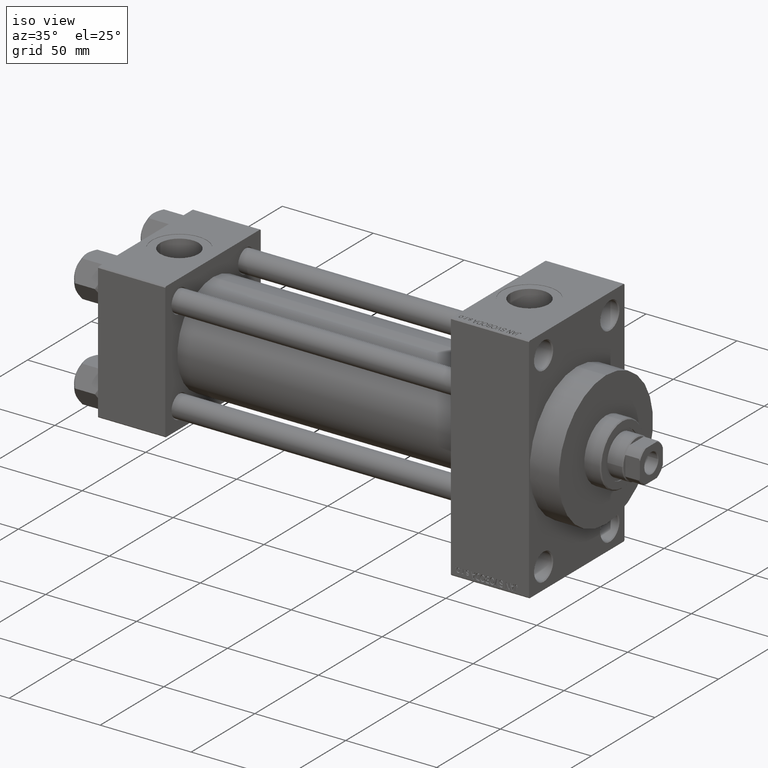
[diagram: clean part render]
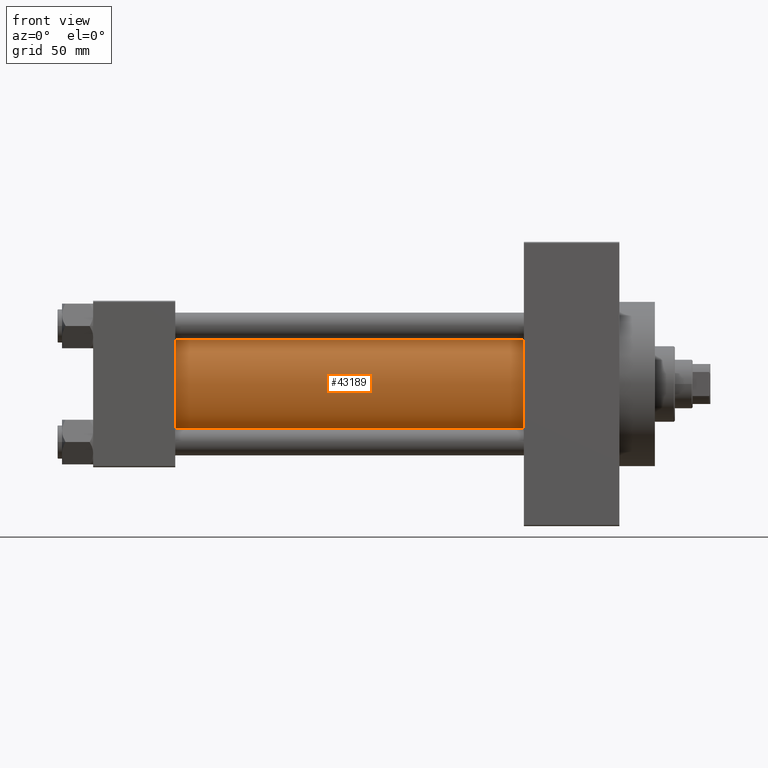
[diagram: tour spotlight — one face highlighted and labeled with its STEP entity id]
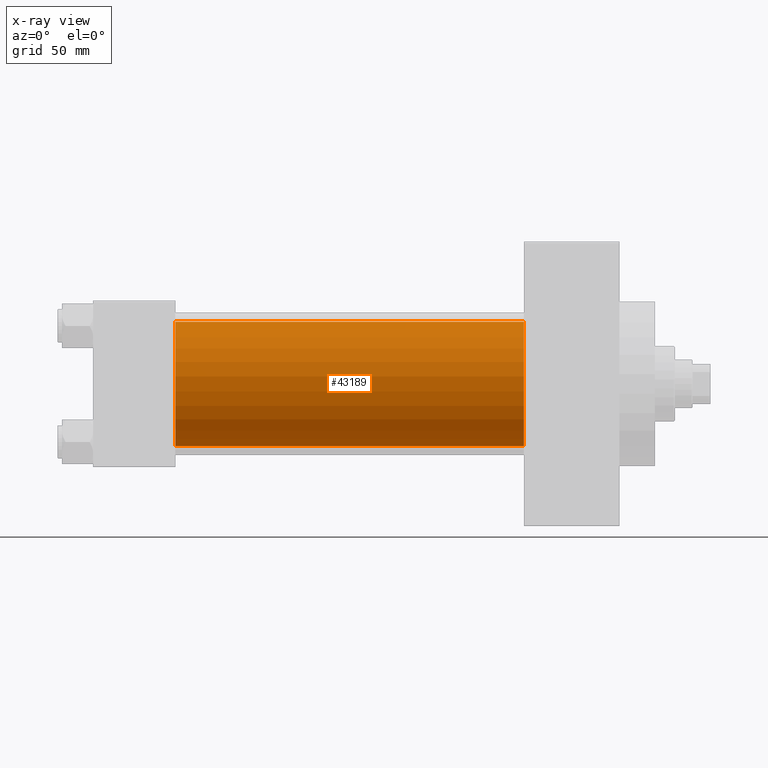
[diagram: x-ray of the same camera — body ghosted, this tour face saturated]
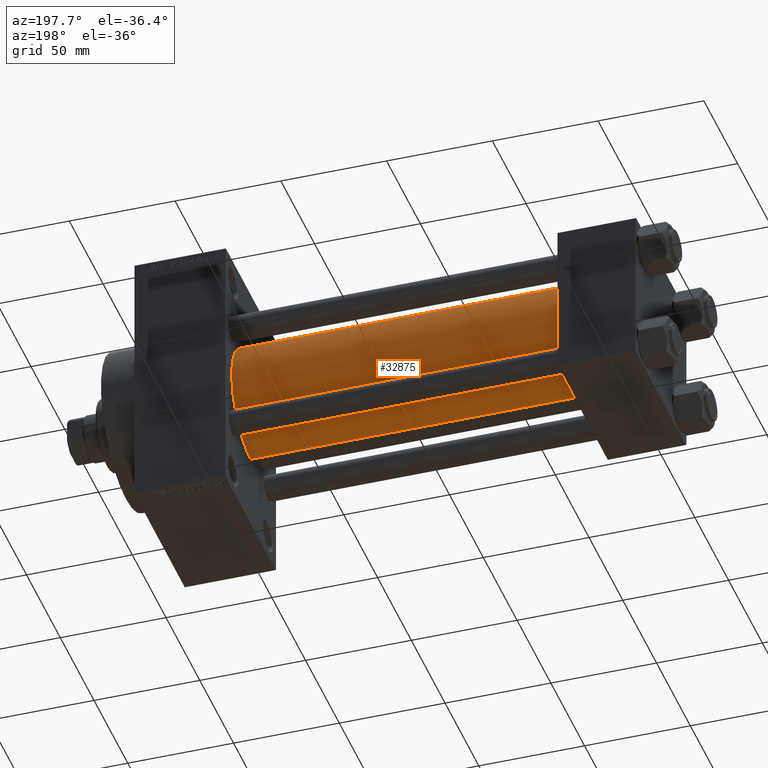
[diagram: tour spotlight — one face highlighted and labeled with its STEP entity id]
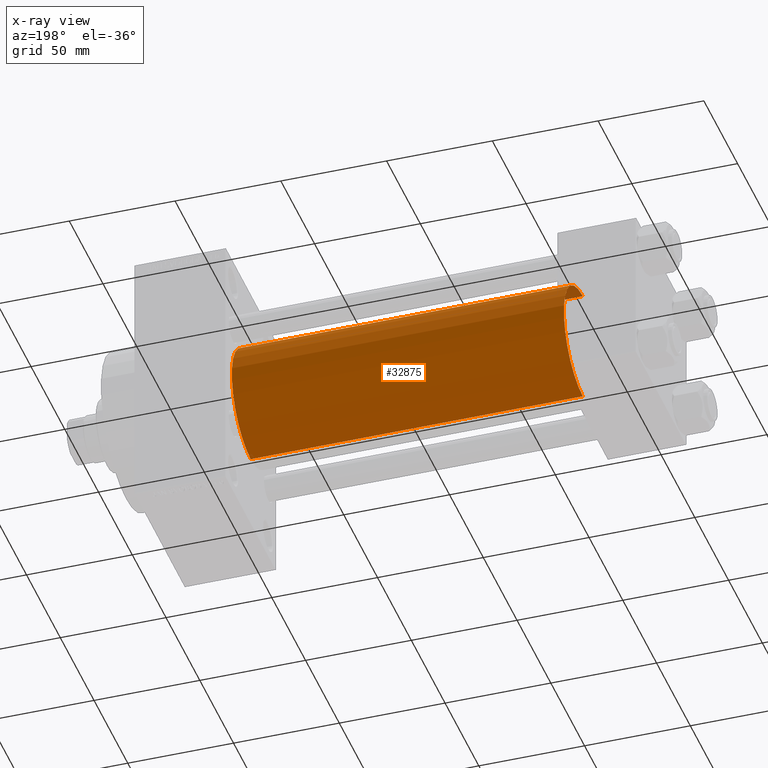
[diagram: x-ray of the same camera — body ghosted, this tour face saturated]
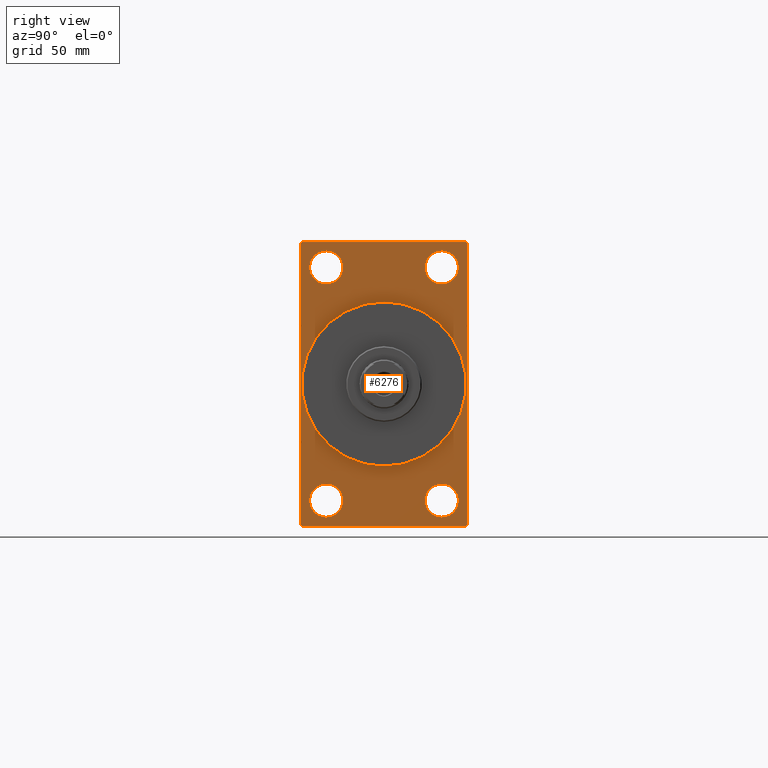
[diagram: tour spotlight — one face highlighted and labeled with its STEP entity id]
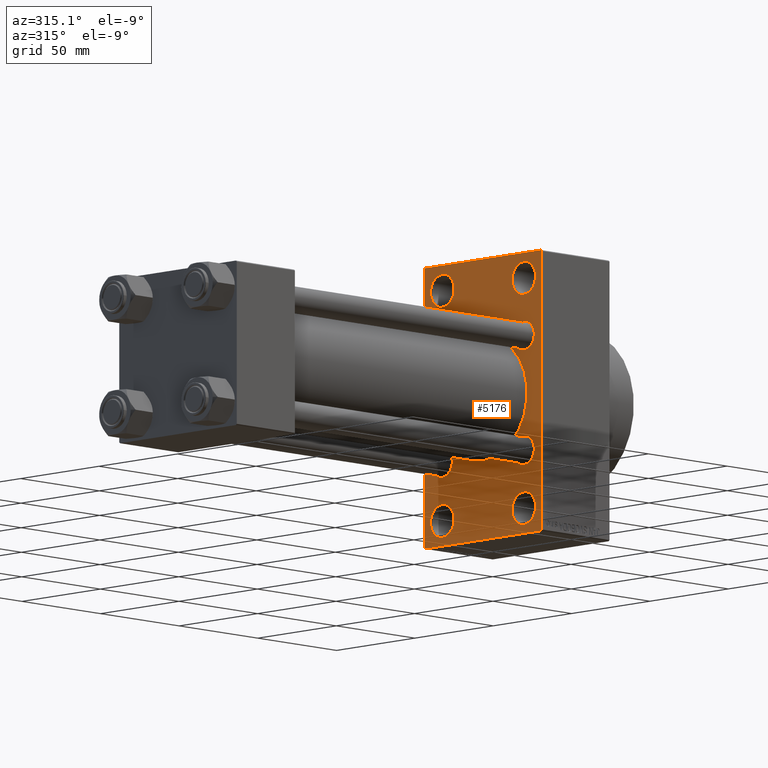
[diagram: tour spotlight — one face highlighted and labeled with its STEP entity id]
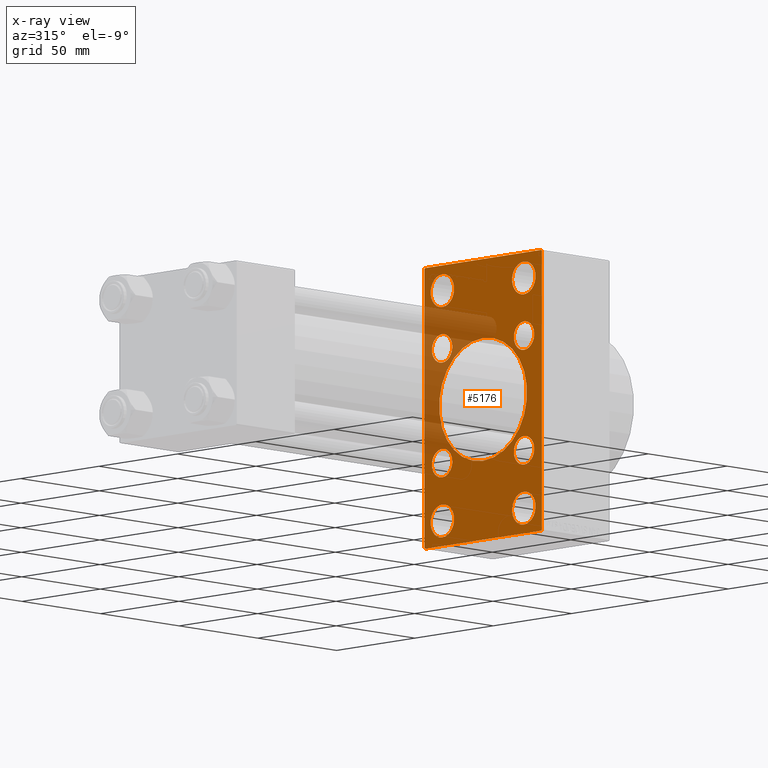
[diagram: x-ray of the same camera — body ghosted, this tour face saturated]
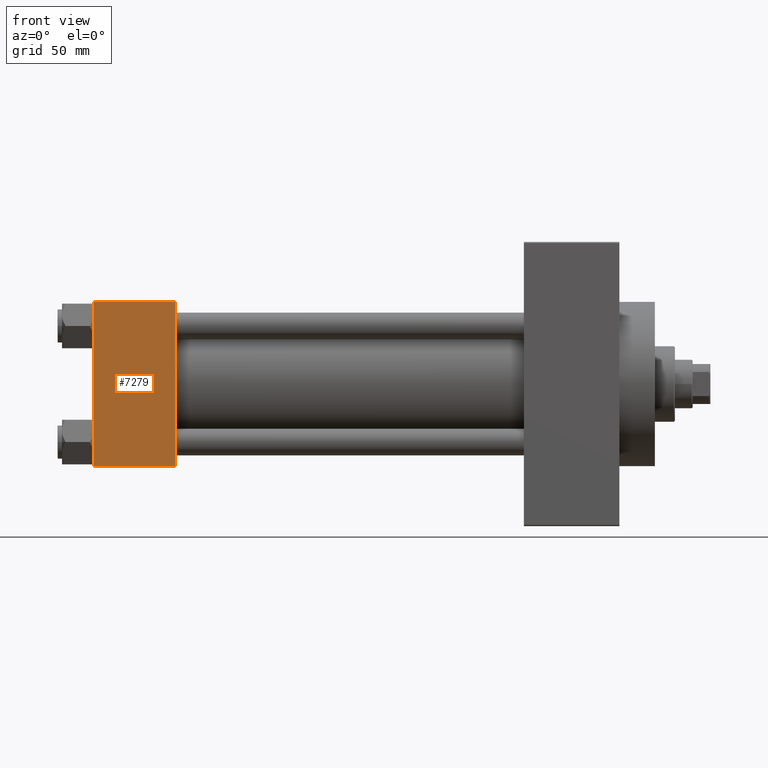
[diagram: tour spotlight — one face highlighted and labeled with its STEP entity id]
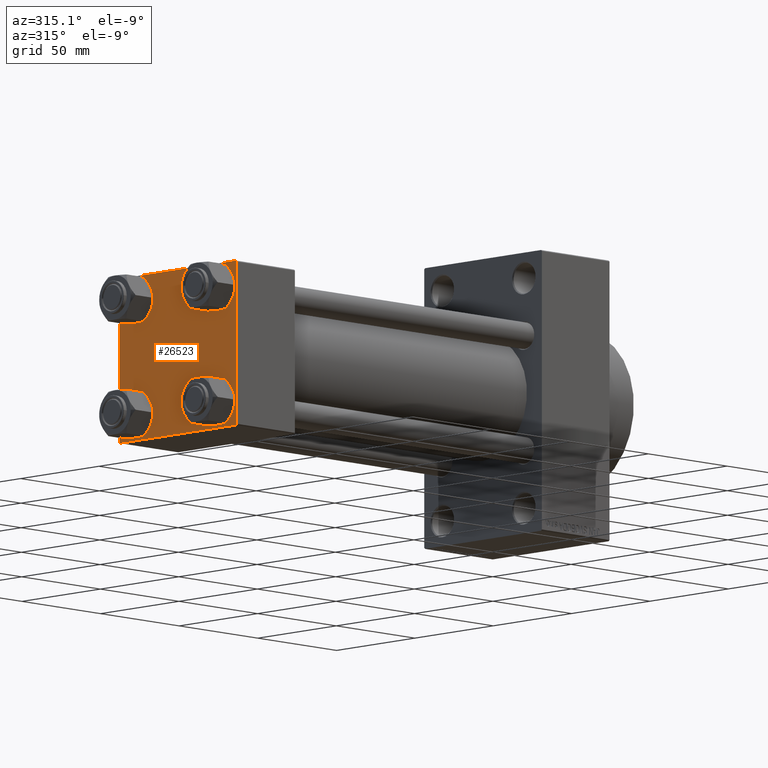
[diagram: tour spotlight — one face highlighted and labeled with its STEP entity id]
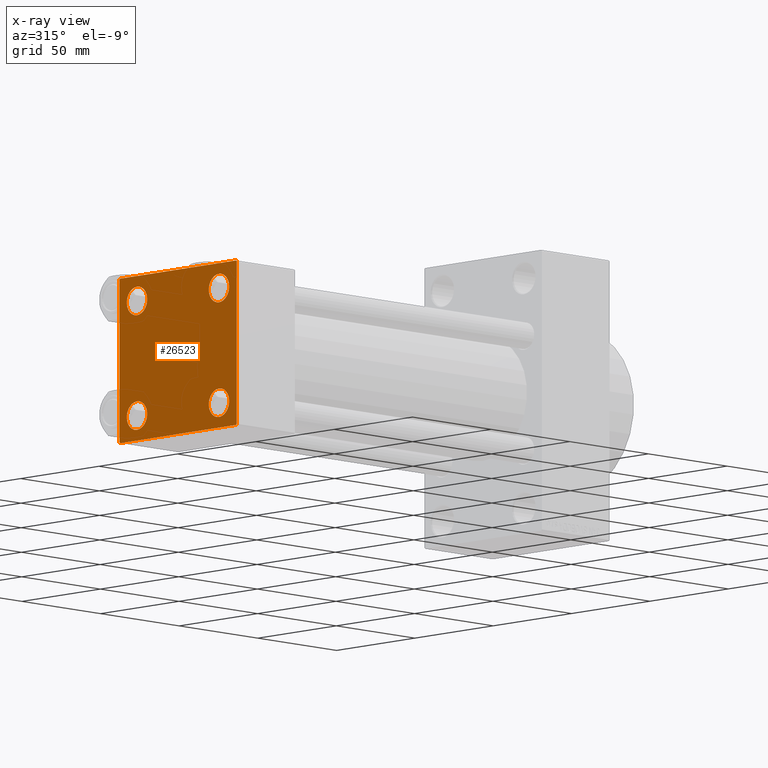
[diagram: x-ray of the same camera — body ghosted, this tour face saturated]
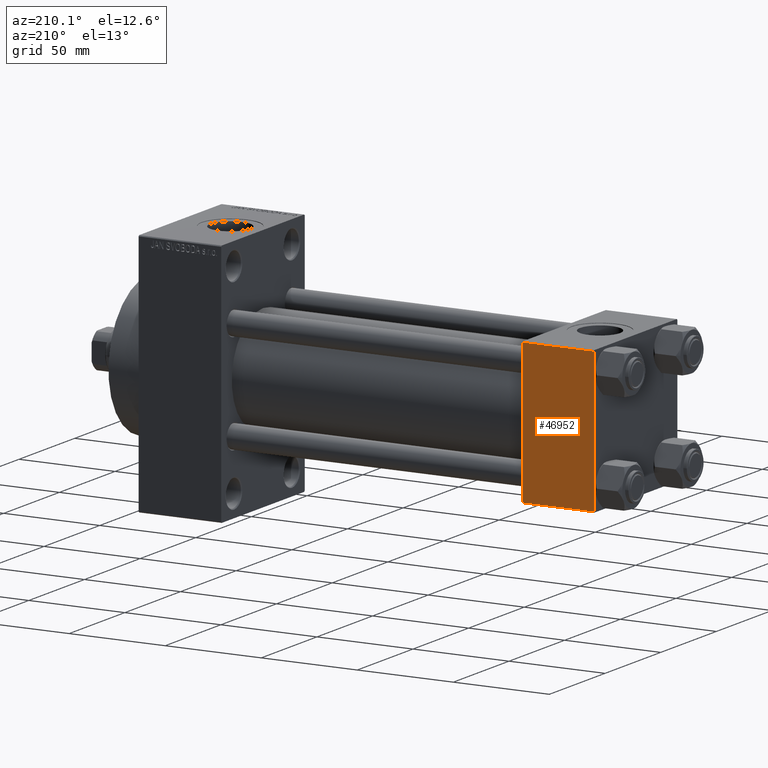
[diagram: tour spotlight — one face highlighted and labeled with its STEP entity id]
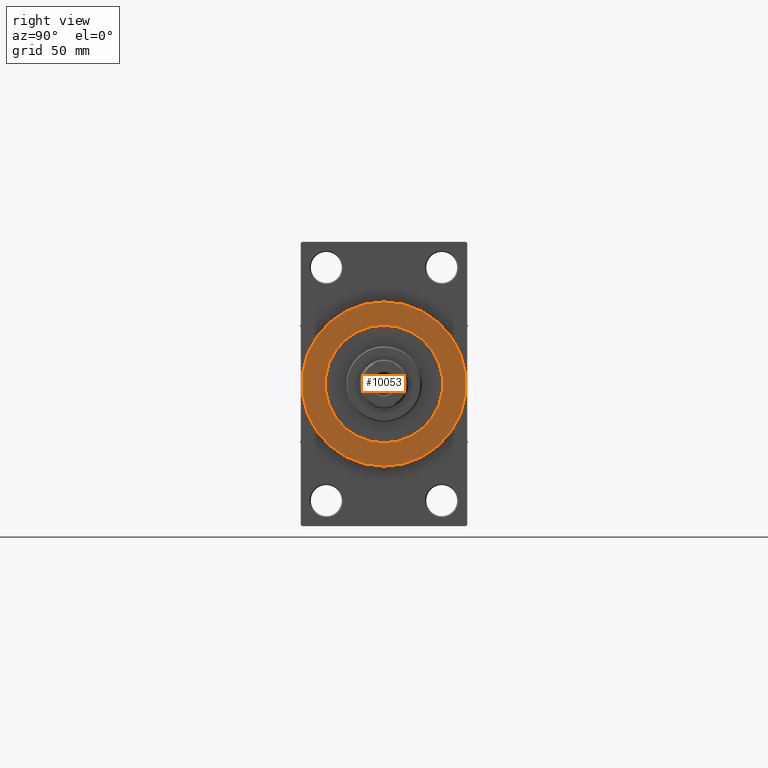
[diagram: tour spotlight — one face highlighted and labeled with its STEP entity id]
A machine part: a face-by-face anatomy tour. The part has 1103 B-rep faces; the first image is the clean iso view, then the 8 largest visible faces are spotlighted one at a time (largest first), each with its STEP entity span.

Face 1 — front view, entity #43189. An x-ray twin of the same camera follows (body ghosted, this face saturated) — the face is partly hidden behind the body. In plain terms, the highlighted cylindrical surface (partial cylindrical patch) has radius 28 mm, axis along (-1, -0, -0).
Definition (entity closure, byte-faithful):
#252 = CARTESIAN_POINT ( 'NONE',  ( 37.00000000000000711, -2.602085213965210642E-15, 0.000000000000000000 ) ) ;
#682 = ORIENTED_EDGE ( 'NONE', *, *, #40907, .T. ) ;
#2118 = VECTOR ( 'NONE', #36703, 1000.000000000000000 ) ;
#2223 = VERTEX_POINT ( 'NONE', #9023 ) ;
#6574 = LINE ( 'NONE', #13512, #36014 ) ;
#7405 = VERTEX_POINT ( 'NONE', #41076 ) ;
#8356 = DIRECTION ( 'NONE',  ( 1.000000000000000000, 0.000000000000000000, 0.000000000000000000 ) ) ;
#9023 = CARTESIAN_POINT ( 'NONE',  ( 194.0000000000000000, 8.269258236473784371E-16, -28.00000000000000000 ) ) ;
#9335 = EDGE_LOOP ( 'NONE', ( #31158, #30934, #682, #46963 ) ) ;
#9817 = CARTESIAN_POINT ( 'NONE',  ( 37.00000000000000711, -2.602085213965210642E-15, 28.00000000000000000 ) ) ;
#11694 = CIRCLE ( 'NONE', #14716, 28.00000000000000000 ) ;
#12913 = DIRECTION ( 'NONE',  ( -1.000000000000000000, -0.000000000000000000, -0.000000000000000000 ) ) ;
#13512 = CARTESIAN_POINT ( 'NONE',  ( 194.0000000000000000, -2.602085213965210642E-15, 28.00000000000000000 ) ) ;
#14716 = AXIS2_PLACEMENT_3D ( 'NONE', #20662, #8356, #22906 ) ;
#15065 = DIRECTION ( 'NONE',  ( 1.000000000000000000, -0.000000000000000000, 0.000000000000000000 ) ) ;
#16233 = CARTESIAN_POINT ( 'NONE',  ( 194.0000000000000000, -2.602085213965210642E-15, 0.000000000000000000 ) ) ;
#16609 = DIRECTION ( 'NONE',  ( -1.000000000000000000, -0.000000000000000000, -0.000000000000000000 ) ) ;
#17621 = EDGE_CURVE ( 'NONE', #32206, #22368, #40961, .T. ) ;
#17916 = EDGE_CURVE ( 'NONE', #2223, #22368, #25724, .T. ) ;
#18812 = CARTESIAN_POINT ( 'NONE',  ( 194.0000000000000000, 8.269258236473784371E-16, -28.00000000000000000 ) ) ;
#20662 = CARTESIAN_POINT ( 'NONE',  ( 194.0000000000000000, -2.602085213965210642E-15, 0.000000000000000000 ) ) ;
#22368 = VERTEX_POINT ( 'NONE', #32830 ) ;
#22906 = DIRECTION ( 'NONE',  ( 0.000000000000000000, 0.000000000000000000, -1.000000000000000000 ) ) ;
#25724 = LINE ( 'NONE', #18812, #2118 ) ;
#26485 = AXIS2_PLACEMENT_3D ( 'NONE', #252, #15065, #36996 ) ;
#30934 = ORIENTED_EDGE ( 'NONE', *, *, #45344, .F. ) ;
#31158 = ORIENTED_EDGE ( 'NONE', *, *, #17916, .F. ) ;
#31244 = CYLINDRICAL_SURFACE ( 'NONE', #38362, 28.00000000000000000 ) ;
#31475 = FACE_OUTER_BOUND ( 'NONE', #9335, .T. ) ;
#32206 = VERTEX_POINT ( 'NONE', #9817 ) ;
#32830 = CARTESIAN_POINT ( 'NONE',  ( 37.00000000000000711, 8.269258236473784371E-16, -28.00000000000000000 ) ) ;
#36014 = VECTOR ( 'NONE', #16609, 1000.000000000000000 ) ;
#36703 = DIRECTION ( 'NONE',  ( -1.000000000000000000, -0.000000000000000000, -0.000000000000000000 ) ) ;
#36996 = DIRECTION ( 'NONE',  ( 0.000000000000000000, 0.000000000000000000, 1.000000000000000000 ) ) ;
#38362 = AXIS2_PLACEMENT_3D ( 'NONE', #16233, #12913, #46046 ) ;
#40907 = EDGE_CURVE ( 'NONE', #7405, #32206, #6574, .T. ) ;
#40961 = CIRCLE ( 'NONE', #26485, 28.00000000000000000 ) ;
#41076 = CARTESIAN_POINT ( 'NONE',  ( 194.0000000000000000, -2.602085213965210642E-15, 28.00000000000000000 ) ) ;
#43189 = ADVANCED_FACE ( 'NONE', ( #31475 ), #31244, .T. ) ;
#45344 = EDGE_CURVE ( 'NONE', #7405, #2223, #11694, .T. ) ;
#46046 = DIRECTION ( 'NONE',  ( 0.000000000000000000, 0.000000000000000000, 1.000000000000000000 ) ) ;
#46963 = ORIENTED_EDGE ( 'NONE', *, *, #17621, .T. ) ;

Face 2 — auxiliary view, entity #32875. An x-ray twin of the same camera follows (body ghosted, this face saturated) — the face is partly hidden behind the body. In plain terms, the highlighted cylindrical surface (partial cylindrical patch) has radius 28 mm, axis along (-1, -0, -0).
Definition (entity closure, byte-faithful):
#723 = AXIS2_PLACEMENT_3D ( 'NONE', #42612, #46448, #18047 ) ;
#2053 = ORIENTED_EDGE ( 'NONE', *, *, #16524, .T. ) ;
#2118 = VECTOR ( 'NONE', #36703, 1000.000000000000000 ) ;
#2223 = VERTEX_POINT ( 'NONE', #9023 ) ;
#3999 = ORIENTED_EDGE ( 'NONE', *, *, #17916, .T. ) ;
#4383 = AXIS2_PLACEMENT_3D ( 'NONE', #8553, #4512, #37198 ) ;
#4512 = DIRECTION ( 'NONE',  ( 1.000000000000000000, -0.000000000000000000, 0.000000000000000000 ) ) ;
#6224 = ORIENTED_EDGE ( 'NONE', *, *, #39655, .F. ) ;
#6574 = LINE ( 'NONE', #13512, #36014 ) ;
#7003 = AXIS2_PLACEMENT_3D ( 'NONE', #35941, #46694, #24971 ) ;
#7405 = VERTEX_POINT ( 'NONE', #41076 ) ;
#8200 = CIRCLE ( 'NONE', #4383, 28.00000000000000000 ) ;
#8553 = CARTESIAN_POINT ( 'NONE',  ( 37.00000000000000711, -2.602085213965210642E-15, 0.000000000000000000 ) ) ;
#9023 = CARTESIAN_POINT ( 'NONE',  ( 194.0000000000000000, 8.269258236473784371E-16, -28.00000000000000000 ) ) ;
#9817 = CARTESIAN_POINT ( 'NONE',  ( 37.00000000000000711, -2.602085213965210642E-15, 28.00000000000000000 ) ) ;
#13512 = CARTESIAN_POINT ( 'NONE',  ( 194.0000000000000000, -2.602085213965210642E-15, 28.00000000000000000 ) ) ;
#16524 = EDGE_CURVE ( 'NONE', #22368, #32206, #8200, .T. ) ;
#16609 = DIRECTION ( 'NONE',  ( -1.000000000000000000, -0.000000000000000000, -0.000000000000000000 ) ) ;
#17334 = FACE_OUTER_BOUND ( 'NONE', #38248, .T. ) ;
#17916 = EDGE_CURVE ( 'NONE', #2223, #22368, #25724, .T. ) ;
#18047 = DIRECTION ( 'NONE',  ( 0.000000000000000000, 0.000000000000000000, 1.000000000000000000 ) ) ;
#18812 = CARTESIAN_POINT ( 'NONE',  ( 194.0000000000000000, 8.269258236473784371E-16, -28.00000000000000000 ) ) ;
#20717 = ORIENTED_EDGE ( 'NONE', *, *, #40907, .F. ) ;
#22368 = VERTEX_POINT ( 'NONE', #32830 ) ;
#24971 = DIRECTION ( 'NONE',  ( 0.000000000000000000, 0.000000000000000000, -1.000000000000000000 ) ) ;
#25724 = LINE ( 'NONE', #18812, #2118 ) ;
#32206 = VERTEX_POINT ( 'NONE', #9817 ) ;
#32830 = CARTESIAN_POINT ( 'NONE',  ( 37.00000000000000711, 8.269258236473784371E-16, -28.00000000000000000 ) ) ;
#32875 = ADVANCED_FACE ( 'NONE', ( #17334 ), #43565, .T. ) ;
#35941 = CARTESIAN_POINT ( 'NONE',  ( 194.0000000000000000, -2.602085213965210642E-15, 0.000000000000000000 ) ) ;
#36014 = VECTOR ( 'NONE', #16609, 1000.000000000000000 ) ;
#36703 = DIRECTION ( 'NONE',  ( -1.000000000000000000, -0.000000000000000000, -0.000000000000000000 ) ) ;
#36742 = CIRCLE ( 'NONE', #7003, 28.00000000000000000 ) ;
#37198 = DIRECTION ( 'NONE',  ( 0.000000000000000000, 0.000000000000000000, 1.000000000000000000 ) ) ;
#38248 = EDGE_LOOP ( 'NONE', ( #6224, #3999, #2053, #20717 ) ) ;
#39655 = EDGE_CURVE ( 'NONE', #2223, #7405, #36742, .T. ) ;
#40907 = EDGE_CURVE ( 'NONE', #7405, #32206, #6574, .T. ) ;
#41076 = CARTESIAN_POINT ( 'NONE',  ( 194.0000000000000000, -2.602085213965210642E-15, 28.00000000000000000 ) ) ;
#42612 = CARTESIAN_POINT ( 'NONE',  ( 194.0000000000000000, -2.602085213965210642E-15, 0.000000000000000000 ) ) ;
#43565 = CYLINDRICAL_SURFACE ( 'NONE', #723, 28.00000000000000000 ) ;
#46448 = DIRECTION ( 'NONE',  ( -1.000000000000000000, -0.000000000000000000, -0.000000000000000000 ) ) ;
#46694 = DIRECTION ( 'NONE',  ( 1.000000000000000000, 0.000000000000000000, 0.000000000000000000 ) ) ;

Face 3 — right view, entity #6276. In plain terms, the highlighted planar face has unit normal (-1, 0, 0).
Definition (entity closure, byte-faithful):
#460 = DIRECTION ( 'NONE',  ( 0.000000000000000000, -1.000000000000000000, -1.850371707708594563E-16 ) ) ;
#592 = AXIS2_PLACEMENT_3D ( 'NONE', #13919, #6748, #29412 ) ;
#945 = DIRECTION ( 'NONE',  ( 0.000000000000000000, -0.7071067811865279218, 0.7071067811865672237 ) ) ;
#982 = CARTESIAN_POINT ( 'NONE',  ( 237.0000000000000000, 37.50000000000000000, 63.99999999999998579 ) ) ;
#1030 = DIRECTION ( 'NONE',  ( -1.000000000000000000, 0.000000000000000000, -0.000000000000000000 ) ) ;
#1390 = DIRECTION ( 'NONE',  ( 0.000000000000000000, 0.000000000000000000, -1.000000000000000000 ) ) ;
#1654 = VECTOR ( 'NONE', #30592, 999.9999999999998863 ) ;
#1817 = LINE ( 'NONE', #30692, #21576 ) ;
#2183 = LINE ( 'NONE', #37748, #1654 ) ;
#2465 = DIRECTION ( 'NONE',  ( 0.000000000000000000, 0.7071067811865181518, -0.7071067811865769936 ) ) ;
#2523 = CIRCLE ( 'NONE', #12469, 37.00000000000000000 ) ;
#2543 = VERTEX_POINT ( 'NONE', #24925 ) ;
#2565 = CIRCLE ( 'NONE', #34585, 7.500000000000034639 ) ;
#2683 = DIRECTION ( 'NONE',  ( -0.000000000000000000, 0.000000000000000000, 1.000000000000000000 ) ) ;
#3256 = AXIS2_PLACEMENT_3D ( 'NONE', #5620, #20179, #35198 ) ;
#3476 = VERTEX_POINT ( 'NONE', #34261 ) ;
#3490 = AXIS2_PLACEMENT_3D ( 'NONE', #5822, #46151, #41862 ) ;
#3909 = VECTOR ( 'NONE', #2465, 1000.000000000000000 ) ;
#4010 = VERTEX_POINT ( 'NONE', #32381 ) ;
#4048 = LINE ( 'NONE', #18606, #30802 ) ;
#4623 = ORIENTED_EDGE ( 'NONE', *, *, #25939, .T. ) ;
#4769 = VERTEX_POINT ( 'NONE', #38591 ) ;
#4921 = EDGE_CURVE ( 'NONE', #11568, #25132, #2565, .T. ) ;
#5088 = ORIENTED_EDGE ( 'NONE', *, *, #15938, .F. ) ;
#5620 = CARTESIAN_POINT ( 'NONE',  ( 237.0000000000000000, -25.99999999999999645, 52.50000000000000000 ) ) ;
#5730 = CIRCLE ( 'NONE', #32412, 7.500000000000034639 ) ;
#5759 = AXIS2_PLACEMENT_3D ( 'NONE', #30138, #1030, #34170 ) ;
#5822 = CARTESIAN_POINT ( 'NONE',  ( 237.0000000000000000, 26.00000000000000000, 52.49999999999999289 ) ) ;
#5932 = EDGE_CURVE ( 'NONE', #4010, #19730, #4048, .T. ) ;
#6042 = ORIENTED_EDGE ( 'NONE', *, *, #40947, .T. ) ;
#6276 = ADVANCED_FACE ( 'NONE', ( #27982, #24873, #28460, #23930, #38713, #39423 ), #17486, .F. ) ;
#6748 = DIRECTION ( 'NONE',  ( -1.000000000000000000, 0.000000000000000000, -0.000000000000000000 ) ) ;
#6945 = CARTESIAN_POINT ( 'NONE',  ( 237.0000000000000000, 26.00000000000000000, -60.00000000000002842 ) ) ;
#7027 = ORIENTED_EDGE ( 'NONE', *, *, #12779, .T. ) ;
#7849 = DIRECTION ( 'NONE',  ( 1.000000000000000000, 0.000000000000000000, 0.000000000000000000 ) ) ;
#8419 = EDGE_CURVE ( 'NONE', #31447, #46027, #27059, .T. ) ;
#8631 = VECTOR ( 'NONE', #40588, 1000.000000000000000 ) ;
#8798 = EDGE_CURVE ( 'NONE', #25132, #11568, #5730, .T. ) ;
#8820 = VECTOR ( 'NONE', #33411, 1000.000000000000000 ) ;
#9983 = DIRECTION ( 'NONE',  ( 0.000000000000000000, 0.000000000000000000, 1.000000000000000000 ) ) ;
#10063 = CARTESIAN_POINT ( 'NONE',  ( 237.0000000000000000, -37.49999999999999289, -63.49999999999997158 ) ) ;
#11010 = EDGE_CURVE ( 'NONE', #4769, #34423, #29463, .T. ) ;
#11078 = CARTESIAN_POINT ( 'NONE',  ( 237.0000000000000000, 37.50000000000000000, 63.99999999999998579 ) ) ;
#11381 = CARTESIAN_POINT ( 'NONE',  ( 237.0000000000000000, 0.000000000000000000, 0.000000000000000000 ) ) ;
#11542 = ORIENTED_EDGE ( 'NONE', *, *, #11010, .T. ) ;
#11550 = CARTESIAN_POINT ( 'NONE',  ( 237.0000000000000000, -36.99999999999999289, -64.00000000000001421 ) ) ;
#11568 = VERTEX_POINT ( 'NONE', #24866 ) ;
#11922 = LINE ( 'NONE', #26459, #19633 ) ;
#11950 = CARTESIAN_POINT ( 'NONE',  ( 237.0000000000000000, -37.49999999999999289, 63.49999999999991473 ) ) ;
#12195 = ORIENTED_EDGE ( 'NONE', *, *, #43366, .F. ) ;
#12469 = AXIS2_PLACEMENT_3D ( 'NONE', #37651, #7849, #1390 ) ;
#12533 = EDGE_CURVE ( 'NONE', #25127, #3476, #20244, .T. ) ;
#12708 = DIRECTION ( 'NONE',  ( 0.000000000000000000, 0.000000000000000000, 1.000000000000000000 ) ) ;
#12744 = VECTOR ( 'NONE', #25619, 1000.000000000000000 ) ;
#12779 = EDGE_CURVE ( 'NONE', #3476, #25127, #37744, .T. ) ;
#13118 = ORIENTED_EDGE ( 'NONE', *, *, #43063, .T. ) ;
#13216 = CARTESIAN_POINT ( 'NONE',  ( 237.0000000000000000, 0.000000000000000000, 0.000000000000000000 ) ) ;
#13919 = CARTESIAN_POINT ( 'NONE',  ( 237.0000000000000000, 26.00000000000000000, -52.49999999999999289 ) ) ;
#14905 = ORIENTED_EDGE ( 'NONE', *, *, #38996, .T. ) ;
#15286 = LINE ( 'NONE', #11950, #8820 ) ;
#15620 = EDGE_CURVE ( 'NONE', #44217, #27018, #34819, .T. ) ;
#15938 = EDGE_CURVE ( 'NONE', #4010, #2543, #43276, .T. ) ;
#16097 = LINE ( 'NONE', #41857, #3909 ) ;
#16552 = EDGE_CURVE ( 'NONE', #29496, #22617, #11922, .T. ) ;
#16663 = VERTEX_POINT ( 'NONE', #31196 ) ;
#17486 = PLANE ( 'NONE',  #23177 ) ;
#18433 = ORIENTED_EDGE ( 'NONE', *, *, #4921, .T. ) ;
#18548 = CARTESIAN_POINT ( 'NONE',  ( 237.0000000000000000, 0.000000000000000000, 37.00000000000000000 ) ) ;
#18606 = CARTESIAN_POINT ( 'NONE',  ( 237.0000000000000000, 37.00000000000000000, 63.99999999999998579 ) ) ;
#18744 = ORIENTED_EDGE ( 'NONE', *, *, #15620, .F. ) ;
#19633 = VECTOR ( 'NONE', #460, 1000.000000000000000 ) ;
#19730 = VERTEX_POINT ( 'NONE', #33723 ) ;
#20179 = DIRECTION ( 'NONE',  ( -1.000000000000000000, 0.000000000000000000, -0.000000000000000000 ) ) ;
#20244 = CIRCLE ( 'NONE', #3490, 7.500000000000034639 ) ;
#20249 = CARTESIAN_POINT ( 'NONE',  ( 237.0000000000000000, 26.00000000000000000, -52.49999999999999289 ) ) ;
#20339 = CARTESIAN_POINT ( 'NONE',  ( 237.0000000000000000, 4.531193156845206793E-15, -37.00000000000000000 ) ) ;
#20951 = EDGE_CURVE ( 'NONE', #46433, #16663, #15286, .T. ) ;
#21141 = CIRCLE ( 'NONE', #592, 7.500000000000034639 ) ;
#21576 = VECTOR ( 'NONE', #22836, 1000.000000000000000 ) ;
#22501 = AXIS2_PLACEMENT_3D ( 'NONE', #20249, #31218, #9983 ) ;
#22617 = VERTEX_POINT ( 'NONE', #11550 ) ;
#22836 = DIRECTION ( 'NONE',  ( 0.000000000000000000, 0.000000000000000000, -1.000000000000000000 ) ) ;
#23079 = EDGE_LOOP ( 'NONE', ( #42800, #18433 ) ) ;
#23177 = AXIS2_PLACEMENT_3D ( 'NONE', #13216, #42525, #2683 ) ;
#23930 = FACE_BOUND ( 'NONE', #29546, .T. ) ;
#24584 = EDGE_LOOP ( 'NONE', ( #4623, #28988 ) ) ;
#24866 = CARTESIAN_POINT ( 'NONE',  ( 237.0000000000000000, -25.99999999999999645, -44.99999999999995737 ) ) ;
#24873 = FACE_BOUND ( 'NONE', #23079, .T. ) ;
#24925 = CARTESIAN_POINT ( 'NONE',  ( 237.0000000000000000, 37.49999999999999289, -63.50000000000001421 ) ) ;
#25127 = VERTEX_POINT ( 'NONE', #26290 ) ;
#25132 = VERTEX_POINT ( 'NONE', #44900 ) ;
#25619 = DIRECTION ( 'NONE',  ( 0.000000000000000000, -5.421010862427522170E-17, -1.000000000000000000 ) ) ;
#25939 = EDGE_CURVE ( 'NONE', #46027, #31447, #21141, .T. ) ;
#26290 = CARTESIAN_POINT ( 'NONE',  ( 237.0000000000000000, 26.00000000000000000, 60.00000000000002842 ) ) ;
#26459 = CARTESIAN_POINT ( 'NONE',  ( 237.0000000000000000, 37.49999999999999289, -64.00000000000000000 ) ) ;
#27018 = VERTEX_POINT ( 'NONE', #18548 ) ;
#27059 = CIRCLE ( 'NONE', #22501, 7.500000000000034639 ) ;
#27092 = CARTESIAN_POINT ( 'NONE',  ( 237.0000000000000000, -25.99999999999999645, 52.50000000000000000 ) ) ;
#27164 = AXIS2_PLACEMENT_3D ( 'NONE', #27092, #45005, #44302 ) ;
#27270 = CARTESIAN_POINT ( 'NONE',  ( 237.0000000000000000, 26.00000000000000000, -44.99999999999995737 ) ) ;
#27877 = EDGE_LOOP ( 'NONE', ( #28787, #41620, #42764, #14905, #5088, #34436, #13118, #34978 ) ) ;
#27982 = FACE_BOUND ( 'NONE', #44629, .T. ) ;
#28460 = FACE_BOUND ( 'NONE', #24584, .T. ) ;
#28738 = AXIS2_PLACEMENT_3D ( 'NONE', #11381, #29268, #29742 ) ;
#28787 = ORIENTED_EDGE ( 'NONE', *, *, #41541, .T. ) ;
#28988 = ORIENTED_EDGE ( 'NONE', *, *, #8419, .T. ) ;
#29268 = DIRECTION ( 'NONE',  ( 1.000000000000000000, 0.000000000000000000, 0.000000000000000000 ) ) ;
#29412 = DIRECTION ( 'NONE',  ( 0.000000000000000000, 0.000000000000000000, 1.000000000000000000 ) ) ;
#29463 = CIRCLE ( 'NONE', #27164, 7.500000000000034639 ) ;
#29496 = VERTEX_POINT ( 'NONE', #41867 ) ;
#29546 = EDGE_LOOP ( 'NONE', ( #7027, #35278 ) ) ;
#29742 = DIRECTION ( 'NONE',  ( 0.000000000000000000, 0.000000000000000000, -1.000000000000000000 ) ) ;
#29757 = DIRECTION ( 'NONE',  ( -1.000000000000000000, 0.000000000000000000, -0.000000000000000000 ) ) ;
#30138 = CARTESIAN_POINT ( 'NONE',  ( 237.0000000000000000, 26.00000000000000000, 52.49999999999999289 ) ) ;
#30592 = DIRECTION ( 'NONE',  ( -0.000000000000000000, 0.7071067811865771047, 0.7071067811865180408 ) ) ;
#30692 = CARTESIAN_POINT ( 'NONE',  ( 237.0000000000000000, -37.49999999999999289, 63.99999999999997158 ) ) ;
#30802 = VECTOR ( 'NONE', #945, 1000.000000000000000 ) ;
#31196 = CARTESIAN_POINT ( 'NONE',  ( 237.0000000000000000, -37.49999999999999289, 63.49999999999991473 ) ) ;
#31218 = DIRECTION ( 'NONE',  ( -1.000000000000000000, 0.000000000000000000, -0.000000000000000000 ) ) ;
#31447 = VERTEX_POINT ( 'NONE', #27270 ) ;
#31700 = CARTESIAN_POINT ( 'NONE',  ( 237.0000000000000000, -36.99999999999992895, 63.99999999999997158 ) ) ;
#32381 = CARTESIAN_POINT ( 'NONE',  ( 237.0000000000000000, 37.50000000000000000, 63.49999999999995737 ) ) ;
#32412 = AXIS2_PLACEMENT_3D ( 'NONE', #34388, #34619, #12708 ) ;
#33338 = CARTESIAN_POINT ( 'NONE',  ( 237.0000000000000000, -25.99999999999999645, -52.49999999999999289 ) ) ;
#33411 = DIRECTION ( 'NONE',  ( -0.000000000000000000, -0.7071067811865524577, -0.7071067811865426878 ) ) ;
#33723 = CARTESIAN_POINT ( 'NONE',  ( 237.0000000000000000, 37.00000000000000000, 63.99999999999998579 ) ) ;
#34170 = DIRECTION ( 'NONE',  ( 0.000000000000000000, 0.000000000000000000, 1.000000000000000000 ) ) ;
#34261 = CARTESIAN_POINT ( 'NONE',  ( 237.0000000000000000, 26.00000000000000000, 44.99999999999995737 ) ) ;
#34388 = CARTESIAN_POINT ( 'NONE',  ( 237.0000000000000000, -25.99999999999999645, -52.49999999999999289 ) ) ;
#34423 = VERTEX_POINT ( 'NONE', #35495 ) ;
#34436 = ORIENTED_EDGE ( 'NONE', *, *, #5932, .T. ) ;
#34585 = AXIS2_PLACEMENT_3D ( 'NONE', #33338, #29757, #44304 ) ;
#34619 = DIRECTION ( 'NONE',  ( -1.000000000000000000, 0.000000000000000000, -0.000000000000000000 ) ) ;
#34819 = CIRCLE ( 'NONE', #28738, 37.00000000000000000 ) ;
#34978 = ORIENTED_EDGE ( 'NONE', *, *, #20951, .T. ) ;
#35198 = DIRECTION ( 'NONE',  ( 0.000000000000000000, 0.000000000000000000, 1.000000000000000000 ) ) ;
#35278 = ORIENTED_EDGE ( 'NONE', *, *, #12533, .T. ) ;
#35495 = CARTESIAN_POINT ( 'NONE',  ( 237.0000000000000000, -25.99999999999999645, 44.99999999999996447 ) ) ;
#37651 = CARTESIAN_POINT ( 'NONE',  ( 237.0000000000000000, 0.000000000000000000, 0.000000000000000000 ) ) ;
#37727 = EDGE_CURVE ( 'NONE', #42887, #22617, #16097, .T. ) ;
#37744 = CIRCLE ( 'NONE', #5759, 7.500000000000034639 ) ;
#37748 = CARTESIAN_POINT ( 'NONE',  ( 237.0000000000000000, 37.49999999999999289, -63.50000000000001421 ) ) ;
#37916 = EDGE_LOOP ( 'NONE', ( #12195, #18744 ) ) ;
#38591 = CARTESIAN_POINT ( 'NONE',  ( 237.0000000000000000, -25.99999999999999645, 60.00000000000003553 ) ) ;
#38713 = FACE_BOUND ( 'NONE', #37916, .T. ) ;
#38996 = EDGE_CURVE ( 'NONE', #29496, #2543, #2183, .T. ) ;
#39423 = FACE_OUTER_BOUND ( 'NONE', #27877, .T. ) ;
#40588 = DIRECTION ( 'NONE',  ( 0.000000000000000000, -1.000000000000000000, -1.850371707708594563E-16 ) ) ;
#40819 = LINE ( 'NONE', #982, #8631 ) ;
#40947 = EDGE_CURVE ( 'NONE', #34423, #4769, #45900, .T. ) ;
#41541 = EDGE_CURVE ( 'NONE', #16663, #42887, #1817, .T. ) ;
#41620 = ORIENTED_EDGE ( 'NONE', *, *, #37727, .T. ) ;
#41857 = CARTESIAN_POINT ( 'NONE',  ( 237.0000000000000000, -36.99999999999999289, -64.00000000000001421 ) ) ;
#41862 = DIRECTION ( 'NONE',  ( 0.000000000000000000, 0.000000000000000000, 1.000000000000000000 ) ) ;
#41867 = CARTESIAN_POINT ( 'NONE',  ( 237.0000000000000000, 36.99999999999996447, -64.00000000000000000 ) ) ;
#42525 = DIRECTION ( 'NONE',  ( -1.000000000000000000, 0.000000000000000000, -0.000000000000000000 ) ) ;
#42764 = ORIENTED_EDGE ( 'NONE', *, *, #16552, .F. ) ;
#42800 = ORIENTED_EDGE ( 'NONE', *, *, #8798, .T. ) ;
#42887 = VERTEX_POINT ( 'NONE', #10063 ) ;
#43063 = EDGE_CURVE ( 'NONE', #19730, #46433, #40819, .T. ) ;
#43276 = LINE ( 'NONE', #11078, #12744 ) ;
#43366 = EDGE_CURVE ( 'NONE', #27018, #44217, #2523, .T. ) ;
#44217 = VERTEX_POINT ( 'NONE', #20339 ) ;
#44302 = DIRECTION ( 'NONE',  ( 0.000000000000000000, 0.000000000000000000, 1.000000000000000000 ) ) ;
#44304 = DIRECTION ( 'NONE',  ( 0.000000000000000000, 0.000000000000000000, 1.000000000000000000 ) ) ;
#44629 = EDGE_LOOP ( 'NONE', ( #6042, #11542 ) ) ;
#44900 = CARTESIAN_POINT ( 'NONE',  ( 237.0000000000000000, -25.99999999999999645, -60.00000000000002842 ) ) ;
#45005 = DIRECTION ( 'NONE',  ( -1.000000000000000000, 0.000000000000000000, -0.000000000000000000 ) ) ;
#45900 = CIRCLE ( 'NONE', #3256, 7.500000000000034639 ) ;
#46027 = VERTEX_POINT ( 'NONE', #6945 ) ;
#46151 = DIRECTION ( 'NONE',  ( -1.000000000000000000, 0.000000000000000000, -0.000000000000000000 ) ) ;
#46433 = VERTEX_POINT ( 'NONE', #31700 ) ;

Face 4 — auxiliary view, entity #5176. An x-ray twin of the same camera follows (body ghosted, this face saturated) — the face is partly hidden behind the body. In plain terms, the highlighted planar face has unit normal (-1, 0, 0).
Definition (entity closure, byte-faithful):
#283 = CARTESIAN_POINT ( 'NONE',  ( 194.0000000000000000, 36.99999999999996447, -64.00000000000000000 ) ) ;
#545 = VERTEX_POINT ( 'NONE', #5589 ) ;
#656 = EDGE_CURVE ( 'NONE', #4758, #35034, #11319, .T. ) ;
#1012 = CIRCLE ( 'NONE', #8628, 6.500000000000008882 ) ;
#1069 = DIRECTION ( 'NONE',  ( 0.000000000000000000, 0.000000000000000000, 1.000000000000000000 ) ) ;
#1181 = AXIS2_PLACEMENT_3D ( 'NONE', #46127, #32039, #21067 ) ;
#1505 = DIRECTION ( 'NONE',  ( 1.000000000000000000, -0.000000000000000000, 0.000000000000000000 ) ) ;
#1586 = VERTEX_POINT ( 'NONE', #4445 ) ;
#1730 = CARTESIAN_POINT ( 'NONE',  ( 194.0000000000000000, -25.99999999999999645, 52.50000000000000000 ) ) ;
#1938 = ORIENTED_EDGE ( 'NONE', *, *, #45344, .T. ) ;
#2006 = CARTESIAN_POINT ( 'NONE',  ( 194.0000000000000000, 26.00000000000000000, 52.49999999999999289 ) ) ;
#2223 = VERTEX_POINT ( 'NONE', #9023 ) ;
#2229 = VECTOR ( 'NONE', #30721, 1000.000000000000000 ) ;
#2263 = FACE_BOUND ( 'NONE', #31982, .T. ) ;
#2617 = CARTESIAN_POINT ( 'NONE',  ( 194.0000000000000000, 26.00000000000000000, 44.99999999999992895 ) ) ;
#2711 = CARTESIAN_POINT ( 'NONE',  ( 194.0000000000000000, -26.14999999999999147, -26.15000000000000924 ) ) ;
#2736 = VERTEX_POINT ( 'NONE', #3445 ) ;
#2863 = VERTEX_POINT ( 'NONE', #23222 ) ;
#2979 = FACE_BOUND ( 'NONE', #14567, .T. ) ;
#3113 = EDGE_CURVE ( 'NONE', #5510, #10582, #15508, .T. ) ;
#3120 = VERTEX_POINT ( 'NONE', #283 ) ;
#3292 = CARTESIAN_POINT ( 'NONE',  ( 194.0000000000000000, -26.14999999999999147, -26.15000000000000924 ) ) ;
#3445 = CARTESIAN_POINT ( 'NONE',  ( 194.0000000000000000, 26.14999999999999858, 19.64999999999999147 ) ) ;
#4445 = CARTESIAN_POINT ( 'NONE',  ( 194.0000000000000000, 37.49999999999999289, -63.50000000000001421 ) ) ;
#4572 = EDGE_CURVE ( 'NONE', #45669, #23714, #35299, .T. ) ;
#4606 = ORIENTED_EDGE ( 'NONE', *, *, #7016, .F. ) ;
#4758 = VERTEX_POINT ( 'NONE', #30507 ) ;
#4993 = ORIENTED_EDGE ( 'NONE', *, *, #26253, .T. ) ;
#5137 = AXIS2_PLACEMENT_3D ( 'NONE', #17233, #31780, #35603 ) ;
#5176 = ADVANCED_FACE ( 'NONE', ( #35426, #39001, #13037, #24214, #31608, #46413, #2979, #24928, #2263, #34953 ), #21113, .T. ) ;
#5187 = DIRECTION ( 'NONE',  ( 1.000000000000000000, -0.000000000000000000, 0.000000000000000000 ) ) ;
#5194 = CARTESIAN_POINT ( 'NONE',  ( 194.0000000000000000, 37.49999999999999289, -64.00000000000000000 ) ) ;
#5351 = VERTEX_POINT ( 'NONE', #12753 ) ;
#5510 = VERTEX_POINT ( 'NONE', #18424 ) ;
#5589 = CARTESIAN_POINT ( 'NONE',  ( 194.0000000000000000, 26.00000000000000000, -44.99999999999992895 ) ) ;
#5705 = VERTEX_POINT ( 'NONE', #34141 ) ;
#5885 = CARTESIAN_POINT ( 'NONE',  ( 194.0000000000000000, 37.50000000000000000, 63.49999999999995737 ) ) ;
#6230 = CARTESIAN_POINT ( 'NONE',  ( 194.0000000000000000, 50.49999999999844391, -50.50000000000265743 ) ) ;
#6654 = CIRCLE ( 'NONE', #12780, 6.500000000000008882 ) ;
#6704 = VERTEX_POINT ( 'NONE', #44078 ) ;
#6729 = CARTESIAN_POINT ( 'NONE',  ( 194.0000000000000000, -25.99999999999999645, -52.49999999999999289 ) ) ;
#6770 = DIRECTION ( 'NONE',  ( 0.000000000000000000, 0.000000000000000000, 1.000000000000000000 ) ) ;
#6871 = AXIS2_PLACEMENT_3D ( 'NONE', #37561, #44734, #1069 ) ;
#6972 = DIRECTION ( 'NONE',  ( 1.000000000000000000, -0.000000000000000000, 0.000000000000000000 ) ) ;
#7003 = AXIS2_PLACEMENT_3D ( 'NONE', #35941, #46694, #24971 ) ;
#7016 = EDGE_CURVE ( 'NONE', #5705, #6704, #10628, .T. ) ;
#7277 = EDGE_LOOP ( 'NONE', ( #45197, #38642 ) ) ;
#7302 = DIRECTION ( 'NONE',  ( 1.000000000000000000, -0.000000000000000000, 0.000000000000000000 ) ) ;
#7364 = LINE ( 'NONE', #25257, #45670 ) ;
#7405 = VERTEX_POINT ( 'NONE', #41076 ) ;
#7628 = AXIS2_PLACEMENT_3D ( 'NONE', #1730, #1505, #26795 ) ;
#7876 = ORIENTED_EDGE ( 'NONE', *, *, #39655, .T. ) ;
#7899 = AXIS2_PLACEMENT_3D ( 'NONE', #6729, #15267, #32019 ) ;
#7947 = EDGE_CURVE ( 'NONE', #23714, #45669, #40035, .T. ) ;
#8095 = DIRECTION ( 'NONE',  ( 1.000000000000000000, -0.000000000000000000, 0.000000000000000000 ) ) ;
#8273 = CARTESIAN_POINT ( 'NONE',  ( 194.0000000000000000, 26.14999999999999858, -32.65000000000001279 ) ) ;
#8356 = DIRECTION ( 'NONE',  ( 1.000000000000000000, 0.000000000000000000, 0.000000000000000000 ) ) ;
#8539 = VECTOR ( 'NONE', #39456, 1000.000000000000000 ) ;
#8568 = EDGE_CURVE ( 'NONE', #29658, #16798, #33168, .T. ) ;
#8628 = AXIS2_PLACEMENT_3D ( 'NONE', #30948, #5187, #19049 ) ;
#8898 = CARTESIAN_POINT ( 'NONE',  ( 194.0000000000000000, -37.49999999999999289, 63.49999999999991473 ) ) ;
#9023 = CARTESIAN_POINT ( 'NONE',  ( 194.0000000000000000, 8.269258236473784371E-16, -28.00000000000000000 ) ) ;
#9135 = ORIENTED_EDGE ( 'NONE', *, *, #16610, .T. ) ;
#9432 = DIRECTION ( 'NONE',  ( -0.000000000000000000, 0.000000000000000000, 1.000000000000000000 ) ) ;
#9468 = CARTESIAN_POINT ( 'NONE',  ( 194.0000000000000000, 26.14999999999999858, -19.64999999999999503 ) ) ;
#10582 = VERTEX_POINT ( 'NONE', #34649 ) ;
#10628 = LINE ( 'NONE', #36138, #38454 ) ;
#10717 = DIRECTION ( 'NONE',  ( 0.000000000000000000, -5.421010862427522170E-17, -1.000000000000000000 ) ) ;
#11059 = ORIENTED_EDGE ( 'NONE', *, *, #46071, .T. ) ;
#11319 = LINE ( 'NONE', #25862, #8539 ) ;
#11516 = ORIENTED_EDGE ( 'NONE', *, *, #24103, .T. ) ;
#11694 = CIRCLE ( 'NONE', #14716, 28.00000000000000000 ) ;
#11763 = VERTEX_POINT ( 'NONE', #2617 ) ;
#11960 = ORIENTED_EDGE ( 'NONE', *, *, #35682, .T. ) ;
#12163 = CARTESIAN_POINT ( 'NONE',  ( 194.0000000000000000, 26.14999999999999858, 26.15000000000000213 ) ) ;
#12341 = CARTESIAN_POINT ( 'NONE',  ( 194.0000000000000000, -26.14999999999999147, 26.15000000000000924 ) ) ;
#12753 = CARTESIAN_POINT ( 'NONE',  ( 194.0000000000000000, -26.14999999999999147, 19.65000000000000213 ) ) ;
#12764 = AXIS2_PLACEMENT_3D ( 'NONE', #12163, #8095, #19998 ) ;
#12780 = AXIS2_PLACEMENT_3D ( 'NONE', #16737, #12946, #41553 ) ;
#12825 = VERTEX_POINT ( 'NONE', #44457 ) ;
#12946 = DIRECTION ( 'NONE',  ( 1.000000000000000000, -0.000000000000000000, 0.000000000000000000 ) ) ;
#13037 = FACE_BOUND ( 'NONE', #21669, .T. ) ;
#13748 = CARTESIAN_POINT ( 'NONE',  ( 194.0000000000000000, 26.00000000000000000, 52.49999999999999289 ) ) ;
#14138 = LINE ( 'NONE', #17475, #46354 ) ;
#14567 = EDGE_LOOP ( 'NONE', ( #11960, #11516 ) ) ;
#14716 = AXIS2_PLACEMENT_3D ( 'NONE', #20662, #8356, #22906 ) ;
#14719 = CARTESIAN_POINT ( 'NONE',  ( 194.0000000000000000, 26.00000000000000000, -52.49999999999999289 ) ) ;
#15045 = CIRCLE ( 'NONE', #41684, 7.500000000000062172 ) ;
#15267 = DIRECTION ( 'NONE',  ( 1.000000000000000000, -0.000000000000000000, 0.000000000000000000 ) ) ;
#15275 = AXIS2_PLACEMENT_3D ( 'NONE', #13748, #28284, #20182 ) ;
#15508 = CIRCLE ( 'NONE', #30706, 7.500000000000062172 ) ;
#16311 = CARTESIAN_POINT ( 'NONE',  ( 194.0000000000000000, 26.00000000000000000, -52.49999999999999289 ) ) ;
#16610 = EDGE_CURVE ( 'NONE', #34148, #6704, #16886, .T. ) ;
#16737 = CARTESIAN_POINT ( 'NONE',  ( 194.0000000000000000, -26.14999999999999147, 26.15000000000000924 ) ) ;
#16798 = VERTEX_POINT ( 'NONE', #17356 ) ;
#16886 = LINE ( 'NONE', #20460, #22670 ) ;
#17233 = CARTESIAN_POINT ( 'NONE',  ( 194.0000000000000000, 26.14999999999999858, -26.15000000000000213 ) ) ;
#17269 = ORIENTED_EDGE ( 'NONE', *, *, #3113, .T. ) ;
#17356 = CARTESIAN_POINT ( 'NONE',  ( 194.0000000000000000, -26.14999999999999147, -19.65000000000000213 ) ) ;
#17391 = EDGE_LOOP ( 'NONE', ( #31281, #39607 ) ) ;
#17448 = DIRECTION ( 'NONE',  ( -0.000000000000000000, -0.7071067811865771047, -0.7071067811865180408 ) ) ;
#17464 = EDGE_CURVE ( 'NONE', #5351, #2863, #6654, .T. ) ;
#17475 = CARTESIAN_POINT ( 'NONE',  ( 194.0000000000000000, 50.50000000000102318, 50.49999999999820943 ) ) ;
#17850 = DIRECTION ( 'NONE',  ( 0.000000000000000000, 0.000000000000000000, 1.000000000000000000 ) ) ;
#18424 = CARTESIAN_POINT ( 'NONE',  ( 194.0000000000000000, -25.99999999999999645, 44.99999999999993605 ) ) ;
#18852 = CARTESIAN_POINT ( 'NONE',  ( 194.0000000000000000, -37.49999999999999289, -63.49999999999997158 ) ) ;
#19030 = EDGE_CURVE ( 'NONE', #34148, #35034, #41451, .T. ) ;
#19049 = DIRECTION ( 'NONE',  ( 0.000000000000000000, 0.000000000000000000, 1.000000000000000000 ) ) ;
#19077 = CIRCLE ( 'NONE', #6871, 6.500000000000008882 ) ;
#19170 = CIRCLE ( 'NONE', #25255, 7.500000000000062172 ) ;
#19385 = ORIENTED_EDGE ( 'NONE', *, *, #656, .T. ) ;
#19898 = EDGE_LOOP ( 'NONE', ( #31872, #23543 ) ) ;
#19998 = DIRECTION ( 'NONE',  ( 0.000000000000000000, 0.000000000000000000, 1.000000000000000000 ) ) ;
#20182 = DIRECTION ( 'NONE',  ( 0.000000000000000000, 0.000000000000000000, 1.000000000000000000 ) ) ;
#20460 = CARTESIAN_POINT ( 'NONE',  ( 194.0000000000000000, -50.49999999999969447, 50.50000000000039080 ) ) ;
#20584 = DIRECTION ( 'NONE',  ( 0.000000000000000000, 0.000000000000000000, 1.000000000000000000 ) ) ;
#20662 = CARTESIAN_POINT ( 'NONE',  ( 194.0000000000000000, -2.602085213965210642E-15, 0.000000000000000000 ) ) ;
#21067 = DIRECTION ( 'NONE',  ( 0.000000000000000000, 0.000000000000000000, 1.000000000000000000 ) ) ;
#21113 = PLANE ( 'NONE',  #45259 ) ;
#21458 = EDGE_LOOP ( 'NONE', ( #21768, #17269 ) ) ;
#21492 = LINE ( 'NONE', #6230, #45217 ) ;
#21669 = EDGE_LOOP ( 'NONE', ( #41287, #23442 ) ) ;
#21768 = ORIENTED_EDGE ( 'NONE', *, *, #30666, .T. ) ;
#22023 = ORIENTED_EDGE ( 'NONE', *, *, #17464, .T. ) ;
#22282 = EDGE_LOOP ( 'NONE', ( #44903, #19385, #46557, #9135, #4606, #4993, #44800, #11059 ) ) ;
#22609 = EDGE_CURVE ( 'NONE', #16798, #29658, #29439, .T. ) ;
#22670 = VECTOR ( 'NONE', #45760, 1000.000000000000000 ) ;
#22839 = EDGE_LOOP ( 'NONE', ( #42247, #22023 ) ) ;
#22906 = DIRECTION ( 'NONE',  ( 0.000000000000000000, 0.000000000000000000, -1.000000000000000000 ) ) ;
#22945 = VERTEX_POINT ( 'NONE', #5885 ) ;
#22987 = EDGE_CURVE ( 'NONE', #32306, #545, #27174, .T. ) ;
#23222 = CARTESIAN_POINT ( 'NONE',  ( 194.0000000000000000, -26.14999999999999147, 32.65000000000001990 ) ) ;
#23442 = ORIENTED_EDGE ( 'NONE', *, *, #22987, .T. ) ;
#23543 = ORIENTED_EDGE ( 'NONE', *, *, #35534, .T. ) ;
#23714 = VERTEX_POINT ( 'NONE', #42111 ) ;
#23888 = CARTESIAN_POINT ( 'NONE',  ( 194.0000000000000000, 26.00000000000000000, -60.00000000000005684 ) ) ;
#24103 = EDGE_CURVE ( 'NONE', #44736, #29273, #33326, .T. ) ;
#24158 = DIRECTION ( 'NONE',  ( 1.000000000000000000, -0.000000000000000000, 0.000000000000000000 ) ) ;
#24214 = FACE_BOUND ( 'NONE', #19898, .T. ) ;
#24246 = EDGE_CURVE ( 'NONE', #12825, #2736, #46290, .T. ) ;
#24900 = EDGE_CURVE ( 'NONE', #545, #32306, #15045, .T. ) ;
#24928 = FACE_BOUND ( 'NONE', #38736, .T. ) ;
#24971 = DIRECTION ( 'NONE',  ( 0.000000000000000000, 0.000000000000000000, -1.000000000000000000 ) ) ;
#25255 = AXIS2_PLACEMENT_3D ( 'NONE', #2006, #45211, #38742 ) ;
#25257 = CARTESIAN_POINT ( 'NONE',  ( 194.0000000000000000, 37.50000000000000000, 63.99999999999998579 ) ) ;
#25405 = DIRECTION ( 'NONE',  ( 0.000000000000000000, -1.000000000000000000, -1.850371707708594563E-16 ) ) ;
#25438 = DIRECTION ( 'NONE',  ( 0.000000000000000000, 0.000000000000000000, 1.000000000000000000 ) ) ;
#25862 = CARTESIAN_POINT ( 'NONE',  ( 194.0000000000000000, -50.50000000000154188, -50.49999999999733546 ) ) ;
#26051 = DIRECTION ( 'NONE',  ( 0.000000000000000000, 0.000000000000000000, 1.000000000000000000 ) ) ;
#26253 = EDGE_CURVE ( 'NONE', #5705, #22945, #14138, .T. ) ;
#26317 = AXIS2_PLACEMENT_3D ( 'NONE', #3292, #43606, #17850 ) ;
#26795 = DIRECTION ( 'NONE',  ( 0.000000000000000000, 0.000000000000000000, 1.000000000000000000 ) ) ;
#26870 = DIRECTION ( 'NONE',  ( 1.000000000000000000, -0.000000000000000000, 0.000000000000000000 ) ) ;
#27065 = CARTESIAN_POINT ( 'NONE',  ( 194.0000000000000000, -25.99999999999999645, -44.99999999999992895 ) ) ;
#27103 = EDGE_CURVE ( 'NONE', #2863, #5351, #38707, .T. ) ;
#27174 = CIRCLE ( 'NONE', #29475, 7.500000000000062172 ) ;
#27816 = VERTEX_POINT ( 'NONE', #30982 ) ;
#28284 = DIRECTION ( 'NONE',  ( 1.000000000000000000, -0.000000000000000000, 0.000000000000000000 ) ) ;
#29273 = VERTEX_POINT ( 'NONE', #9468 ) ;
#29439 = CIRCLE ( 'NONE', #35513, 6.500000000000008882 ) ;
#29475 = AXIS2_PLACEMENT_3D ( 'NONE', #14719, #7302, #25438 ) ;
#29658 = VERTEX_POINT ( 'NONE', #38980 ) ;
#30124 = EDGE_CURVE ( 'NONE', #3120, #4758, #41696, .T. ) ;
#30507 = CARTESIAN_POINT ( 'NONE',  ( 194.0000000000000000, -36.99999999999999289, -64.00000000000001421 ) ) ;
#30666 = EDGE_CURVE ( 'NONE', #10582, #5510, #38097, .T. ) ;
#30706 = AXIS2_PLACEMENT_3D ( 'NONE', #43952, #6972, #26051 ) ;
#30715 = CARTESIAN_POINT ( 'NONE',  ( 194.0000000000000000, -37.49999999999999289, 63.99999999999997158 ) ) ;
#30721 = DIRECTION ( 'NONE',  ( 0.000000000000000000, -1.000000000000000000, -1.850371707708594563E-16 ) ) ;
#30948 = CARTESIAN_POINT ( 'NONE',  ( 194.0000000000000000, 26.14999999999999858, 26.15000000000000213 ) ) ;
#30982 = CARTESIAN_POINT ( 'NONE',  ( 194.0000000000000000, 26.00000000000000000, 60.00000000000005684 ) ) ;
#31281 = ORIENTED_EDGE ( 'NONE', *, *, #24246, .T. ) ;
#31608 = FACE_BOUND ( 'NONE', #22839, .T. ) ;
#31780 = DIRECTION ( 'NONE',  ( 1.000000000000000000, -0.000000000000000000, 0.000000000000000000 ) ) ;
#31781 = DIRECTION ( 'NONE',  ( 0.000000000000000000, 0.7071067811865279218, -0.7071067811865672237 ) ) ;
#31872 = ORIENTED_EDGE ( 'NONE', *, *, #38555, .T. ) ;
#31982 = EDGE_LOOP ( 'NONE', ( #1938, #7876 ) ) ;
#32019 = DIRECTION ( 'NONE',  ( 0.000000000000000000, 0.000000000000000000, 1.000000000000000000 ) ) ;
#32039 = DIRECTION ( 'NONE',  ( 1.000000000000000000, -0.000000000000000000, 0.000000000000000000 ) ) ;
#32306 = VERTEX_POINT ( 'NONE', #23888 ) ;
#33168 = CIRCLE ( 'NONE', #26317, 6.500000000000008882 ) ;
#33326 = CIRCLE ( 'NONE', #5137, 6.500000000000008882 ) ;
#33393 = AXIS2_PLACEMENT_3D ( 'NONE', #12341, #26870, #44780 ) ;
#33474 = EDGE_CURVE ( 'NONE', #22945, #1586, #7364, .T. ) ;
#34141 = CARTESIAN_POINT ( 'NONE',  ( 194.0000000000000000, 37.00000000000000000, 63.99999999999998579 ) ) ;
#34148 = VERTEX_POINT ( 'NONE', #8898 ) ;
#34649 = CARTESIAN_POINT ( 'NONE',  ( 194.0000000000000000, -25.99999999999999645, 60.00000000000005684 ) ) ;
#34953 = FACE_OUTER_BOUND ( 'NONE', #22282, .T. ) ;
#35034 = VERTEX_POINT ( 'NONE', #18852 ) ;
#35299 = CIRCLE ( 'NONE', #7899, 7.500000000000062172 ) ;
#35426 = FACE_BOUND ( 'NONE', #21458, .T. ) ;
#35513 = AXIS2_PLACEMENT_3D ( 'NONE', #2711, #35640, #6770 ) ;
#35534 = EDGE_CURVE ( 'NONE', #11763, #27816, #35812, .T. ) ;
#35603 = DIRECTION ( 'NONE',  ( 0.000000000000000000, 0.000000000000000000, 1.000000000000000000 ) ) ;
#35640 = DIRECTION ( 'NONE',  ( 1.000000000000000000, -0.000000000000000000, 0.000000000000000000 ) ) ;
#35682 = EDGE_CURVE ( 'NONE', #29273, #44736, #19077, .T. ) ;
#35812 = CIRCLE ( 'NONE', #15275, 7.500000000000062172 ) ;
#35941 = CARTESIAN_POINT ( 'NONE',  ( 194.0000000000000000, -2.602085213965210642E-15, 0.000000000000000000 ) ) ;
#36138 = CARTESIAN_POINT ( 'NONE',  ( 194.0000000000000000, 37.50000000000000000, 63.99999999999998579 ) ) ;
#36742 = CIRCLE ( 'NONE', #7003, 28.00000000000000000 ) ;
#37216 = VECTOR ( 'NONE', #41691, 1000.000000000000000 ) ;
#37561 = CARTESIAN_POINT ( 'NONE',  ( 194.0000000000000000, 26.14999999999999858, -26.15000000000000213 ) ) ;
#38097 = CIRCLE ( 'NONE', #7628, 7.500000000000062172 ) ;
#38454 = VECTOR ( 'NONE', #25405, 1000.000000000000000 ) ;
#38555 = EDGE_CURVE ( 'NONE', #27816, #11763, #19170, .T. ) ;
#38642 = ORIENTED_EDGE ( 'NONE', *, *, #7947, .T. ) ;
#38707 = CIRCLE ( 'NONE', #33393, 6.500000000000008882 ) ;
#38736 = EDGE_LOOP ( 'NONE', ( #41540, #43223 ) ) ;
#38742 = DIRECTION ( 'NONE',  ( 0.000000000000000000, 0.000000000000000000, 1.000000000000000000 ) ) ;
#38980 = CARTESIAN_POINT ( 'NONE',  ( 194.0000000000000000, -26.14999999999999147, -32.65000000000001990 ) ) ;
#39001 = FACE_BOUND ( 'NONE', #7277, .T. ) ;
#39456 = DIRECTION ( 'NONE',  ( 0.000000000000000000, -0.7071067811865181518, 0.7071067811865769936 ) ) ;
#39475 = DIRECTION ( 'NONE',  ( -1.000000000000000000, 0.000000000000000000, -0.000000000000000000 ) ) ;
#39607 = ORIENTED_EDGE ( 'NONE', *, *, #46730, .T. ) ;
#39655 = EDGE_CURVE ( 'NONE', #2223, #7405, #36742, .T. ) ;
#40035 = CIRCLE ( 'NONE', #1181, 7.500000000000062172 ) ;
#41076 = CARTESIAN_POINT ( 'NONE',  ( 194.0000000000000000, -2.602085213965210642E-15, 28.00000000000000000 ) ) ;
#41287 = ORIENTED_EDGE ( 'NONE', *, *, #24900, .T. ) ;
#41451 = LINE ( 'NONE', #30715, #37216 ) ;
#41540 = ORIENTED_EDGE ( 'NONE', *, *, #22609, .T. ) ;
#41553 = DIRECTION ( 'NONE',  ( 0.000000000000000000, 0.000000000000000000, 1.000000000000000000 ) ) ;
#41684 = AXIS2_PLACEMENT_3D ( 'NONE', #16311, #24158, #20584 ) ;
#41691 = DIRECTION ( 'NONE',  ( 0.000000000000000000, 0.000000000000000000, -1.000000000000000000 ) ) ;
#41696 = LINE ( 'NONE', #5194, #2229 ) ;
#42111 = CARTESIAN_POINT ( 'NONE',  ( 194.0000000000000000, -25.99999999999999645, -60.00000000000005684 ) ) ;
#42247 = ORIENTED_EDGE ( 'NONE', *, *, #27103, .T. ) ;
#43223 = ORIENTED_EDGE ( 'NONE', *, *, #8568, .T. ) ;
#43606 = DIRECTION ( 'NONE',  ( 1.000000000000000000, -0.000000000000000000, 0.000000000000000000 ) ) ;
#43952 = CARTESIAN_POINT ( 'NONE',  ( 194.0000000000000000, -25.99999999999999645, 52.50000000000000000 ) ) ;
#44078 = CARTESIAN_POINT ( 'NONE',  ( 194.0000000000000000, -36.99999999999992895, 63.99999999999997158 ) ) ;
#44457 = CARTESIAN_POINT ( 'NONE',  ( 194.0000000000000000, 26.14999999999999858, 32.65000000000001990 ) ) ;
#44734 = DIRECTION ( 'NONE',  ( 1.000000000000000000, -0.000000000000000000, 0.000000000000000000 ) ) ;
#44736 = VERTEX_POINT ( 'NONE', #8273 ) ;
#44780 = DIRECTION ( 'NONE',  ( 0.000000000000000000, 0.000000000000000000, 1.000000000000000000 ) ) ;
#44800 = ORIENTED_EDGE ( 'NONE', *, *, #33474, .T. ) ;
#44903 = ORIENTED_EDGE ( 'NONE', *, *, #30124, .T. ) ;
#45197 = ORIENTED_EDGE ( 'NONE', *, *, #4572, .T. ) ;
#45211 = DIRECTION ( 'NONE',  ( 1.000000000000000000, -0.000000000000000000, 0.000000000000000000 ) ) ;
#45217 = VECTOR ( 'NONE', #17448, 999.9999999999998863 ) ;
#45259 = AXIS2_PLACEMENT_3D ( 'NONE', #46178, #39475, #9432 ) ;
#45344 = EDGE_CURVE ( 'NONE', #7405, #2223, #11694, .T. ) ;
#45669 = VERTEX_POINT ( 'NONE', #27065 ) ;
#45670 = VECTOR ( 'NONE', #10717, 1000.000000000000000 ) ;
#45760 = DIRECTION ( 'NONE',  ( -0.000000000000000000, 0.7071067811865524577, 0.7071067811865426878 ) ) ;
#46071 = EDGE_CURVE ( 'NONE', #1586, #3120, #21492, .T. ) ;
#46127 = CARTESIAN_POINT ( 'NONE',  ( 194.0000000000000000, -25.99999999999999645, -52.49999999999999289 ) ) ;
#46178 = CARTESIAN_POINT ( 'NONE',  ( 194.0000000000000000, 0.000000000000000000, 0.000000000000000000 ) ) ;
#46290 = CIRCLE ( 'NONE', #12764, 6.500000000000008882 ) ;
#46354 = VECTOR ( 'NONE', #31781, 1000.000000000000000 ) ;
#46413 = FACE_BOUND ( 'NONE', #17391, .T. ) ;
#46557 = ORIENTED_EDGE ( 'NONE', *, *, #19030, .F. ) ;
#46694 = DIRECTION ( 'NONE',  ( 1.000000000000000000, 0.000000000000000000, 0.000000000000000000 ) ) ;
#46730 = EDGE_CURVE ( 'NONE', #2736, #12825, #1012, .T. ) ;

Face 5 — front view, entity #7279. In plain terms, the highlighted planar face has unit normal (0, 1, 0).
Definition (entity closure, byte-faithful):
#2212 = CARTESIAN_POINT ( 'NONE',  ( 37.00000000000000000, -37.50000000000000711, 37.49999999999999289 ) ) ;
#4681 = LINE ( 'NONE', #40946, #26383 ) ;
#5612 = EDGE_CURVE ( 'NONE', #21753, #38612, #35841, .T. ) ;
#6388 = VECTOR ( 'NONE', #32510, 1000.000000000000000 ) ;
#7161 = CARTESIAN_POINT ( 'NONE',  ( 0.000000000000000000, -37.50000000000000711, 36.99999999999999289 ) ) ;
#7279 = ADVANCED_FACE ( 'NONE', ( #24629 ), #34902, .F. ) ;
#8766 = LINE ( 'NONE', #37871, #43297 ) ;
#11064 = AXIS2_PLACEMENT_3D ( 'NONE', #2212, #16775, #42062 ) ;
#14333 = EDGE_CURVE ( 'NONE', #28769, #42667, #4681, .T. ) ;
#14559 = ORIENTED_EDGE ( 'NONE', *, *, #14333, .T. ) ;
#14827 = ORIENTED_EDGE ( 'NONE', *, *, #5612, .F. ) ;
#15596 = LINE ( 'NONE', #44701, #34999 ) ;
#15659 = DIRECTION ( 'NONE',  ( 0.000000000000000000, 9.251858538542971581E-17, -1.000000000000000000 ) ) ;
#16775 = DIRECTION ( 'NONE',  ( -0.000000000000000000, 1.000000000000000000, 9.251858538542971581E-17 ) ) ;
#17100 = CARTESIAN_POINT ( 'NONE',  ( 0.000000000000000000, -37.50000000000000000, -37.00000000000003553 ) ) ;
#18933 = EDGE_CURVE ( 'NONE', #42667, #38612, #8766, .T. ) ;
#19793 = CARTESIAN_POINT ( 'NONE',  ( 37.00000000000000000, -37.50000000000000711, 36.99999999999999289 ) ) ;
#21753 = VERTEX_POINT ( 'NONE', #19793 ) ;
#24008 = ORIENTED_EDGE ( 'NONE', *, *, #29888, .T. ) ;
#24629 = FACE_OUTER_BOUND ( 'NONE', #26021, .T. ) ;
#26021 = EDGE_LOOP ( 'NONE', ( #14559, #41200, #14827, #24008 ) ) ;
#26383 = VECTOR ( 'NONE', #15659, 1000.000000000000000 ) ;
#27135 = DIRECTION ( 'NONE',  ( 1.000000000000000000, 0.000000000000000000, 0.000000000000000000 ) ) ;
#28769 = VERTEX_POINT ( 'NONE', #7161 ) ;
#29888 = EDGE_CURVE ( 'NONE', #21753, #28769, #15596, .T. ) ;
#31116 = CARTESIAN_POINT ( 'NONE',  ( 37.00000000000000000, -37.50000000000000000, -37.00000000000003553 ) ) ;
#32510 = DIRECTION ( 'NONE',  ( 0.000000000000000000, 9.251858538542971581E-17, -1.000000000000000000 ) ) ;
#34902 = PLANE ( 'NONE',  #11064 ) ;
#34999 = VECTOR ( 'NONE', #45629, 1000.000000000000000 ) ;
#35841 = LINE ( 'NONE', #39650, #6388 ) ;
#37871 = CARTESIAN_POINT ( 'NONE',  ( 37.00000000000000000, -37.50000000000000000, -37.00000000000003553 ) ) ;
#38612 = VERTEX_POINT ( 'NONE', #31116 ) ;
#39650 = CARTESIAN_POINT ( 'NONE',  ( 37.00000000000000000, -37.50000000000000711, 37.49999999999999289 ) ) ;
#40946 = CARTESIAN_POINT ( 'NONE',  ( 0.000000000000000000, -37.50000000000000711, 37.49999999999999289 ) ) ;
#41200 = ORIENTED_EDGE ( 'NONE', *, *, #18933, .T. ) ;
#42062 = DIRECTION ( 'NONE',  ( 0.000000000000000000, -9.251858538542971581E-17, 1.000000000000000000 ) ) ;
#42667 = VERTEX_POINT ( 'NONE', #17100 ) ;
#43297 = VECTOR ( 'NONE', #27135, 1000.000000000000000 ) ;
#44701 = CARTESIAN_POINT ( 'NONE',  ( 37.00000000000000000, -37.50000000000000711, 36.99999999999999289 ) ) ;
#45629 = DIRECTION ( 'NONE',  ( -1.000000000000000000, 0.000000000000000000, 0.000000000000000000 ) ) ;

Face 6 — auxiliary view, entity #26523. An x-ray twin of the same camera follows (body ghosted, this face saturated) — the face is partly hidden behind the body. In plain terms, the highlighted planar face has unit normal (-1, 0, 0).
Definition (entity closure, byte-faithful):
#1171 = DIRECTION ( 'NONE',  ( -0.000000000000000000, 0.7071067811865474617, 0.7071067811865474617 ) ) ;
#1403 = EDGE_LOOP ( 'NONE', ( #45304, #46906 ) ) ;
#1410 = CIRCLE ( 'NONE', #28834, 6.500000000000023093 ) ;
#1764 = CARTESIAN_POINT ( 'NONE',  ( 0.000000000000000000, -26.14999999999999147, -26.15000000000000924 ) ) ;
#1877 = VERTEX_POINT ( 'NONE', #46164 ) ;
#3017 = EDGE_CURVE ( 'NONE', #13693, #3398, #3291, .T. ) ;
#3095 = EDGE_LOOP ( 'NONE', ( #21613, #45490 ) ) ;
#3291 = CIRCLE ( 'NONE', #31481, 6.500000000000023093 ) ;
#3360 = ORIENTED_EDGE ( 'NONE', *, *, #39181, .F. ) ;
#3398 = VERTEX_POINT ( 'NONE', #5852 ) ;
#3439 = CARTESIAN_POINT ( 'NONE',  ( 0.000000000000000000, -26.14999999999999147, -19.64999999999999503 ) ) ;
#3697 = CARTESIAN_POINT ( 'NONE',  ( 0.000000000000000000, 37.49999999999999289, 37.50000000000000000 ) ) ;
#3873 = VECTOR ( 'NONE', #28773, 1000.000000000000000 ) ;
#4130 = VERTEX_POINT ( 'NONE', #44998 ) ;
#4155 = DIRECTION ( 'NONE',  ( -0.000000000000000000, -0.7071067811865474617, -0.7071067811865474617 ) ) ;
#4301 = VERTEX_POINT ( 'NONE', #3439 ) ;
#4681 = LINE ( 'NONE', #40946, #26383 ) ;
#5576 = DIRECTION ( 'NONE',  ( 1.000000000000000000, -0.000000000000000000, 0.000000000000000000 ) ) ;
#5852 = CARTESIAN_POINT ( 'NONE',  ( 0.000000000000000000, 26.14999999999999858, 32.65000000000002700 ) ) ;
#5863 = VECTOR ( 'NONE', #27078, 1000.000000000000000 ) ;
#5953 = EDGE_CURVE ( 'NONE', #6823, #12686, #38420, .T. ) ;
#5993 = EDGE_LOOP ( 'NONE', ( #15273, #45565, #14728, #18398, #40968, #7877, #3360, #11183 ) ) ;
#6362 = EDGE_CURVE ( 'NONE', #46853, #39371, #40728, .T. ) ;
#6445 = VECTOR ( 'NONE', #40198, 1000.000000000000000 ) ;
#6456 = VERTEX_POINT ( 'NONE', #32753 ) ;
#6823 = VERTEX_POINT ( 'NONE', #28040 ) ;
#6845 = ORIENTED_EDGE ( 'NONE', *, *, #45747, .T. ) ;
#6956 = EDGE_CURVE ( 'NONE', #6456, #1877, #39718, .T. ) ;
#7161 = CARTESIAN_POINT ( 'NONE',  ( 0.000000000000000000, -37.50000000000000711, 36.99999999999999289 ) ) ;
#7213 = DIRECTION ( 'NONE',  ( 1.000000000000000000, -0.000000000000000000, 0.000000000000000000 ) ) ;
#7242 = CARTESIAN_POINT ( 'NONE',  ( 0.000000000000000000, 26.14999999999999858, 26.15000000000000213 ) ) ;
#7325 = AXIS2_PLACEMENT_3D ( 'NONE', #1764, #5576, #8695 ) ;
#7877 = ORIENTED_EDGE ( 'NONE', *, *, #11919, .T. ) ;
#8695 = DIRECTION ( 'NONE',  ( 0.000000000000000000, 0.000000000000000000, 1.000000000000000000 ) ) ;
#9492 = AXIS2_PLACEMENT_3D ( 'NONE', #33862, #37210, #44840 ) ;
#9590 = CARTESIAN_POINT ( 'NONE',  ( 0.000000000000000000, 26.14999999999999858, 19.64999999999998437 ) ) ;
#10131 = AXIS2_PLACEMENT_3D ( 'NONE', #10829, #46861, #31581 ) ;
#10500 = FACE_BOUND ( 'NONE', #1403, .T. ) ;
#10829 = CARTESIAN_POINT ( 'NONE',  ( 0.000000000000000000, -26.14999999999999147, -26.15000000000000924 ) ) ;
#11014 = DIRECTION ( 'NONE',  ( 0.000000000000000000, -1.000000000000000000, -9.251858538542971581E-17 ) ) ;
#11183 = ORIENTED_EDGE ( 'NONE', *, *, #12212, .T. ) ;
#11912 = CIRCLE ( 'NONE', #7325, 6.500000000000015987 ) ;
#11919 = EDGE_CURVE ( 'NONE', #28769, #29774, #18605, .T. ) ;
#12024 = CARTESIAN_POINT ( 'NONE',  ( 0.000000000000000000, -26.14999999999999147, 26.15000000000000924 ) ) ;
#12212 = EDGE_CURVE ( 'NONE', #34343, #6456, #18872, .T. ) ;
#12316 = CARTESIAN_POINT ( 'NONE',  ( 0.000000000000000000, -37.24999999999975842, -37.25000000000027001 ) ) ;
#12686 = VERTEX_POINT ( 'NONE', #39684 ) ;
#12727 = DIRECTION ( 'NONE',  ( 1.000000000000000000, -0.000000000000000000, 0.000000000000000000 ) ) ;
#13348 = VERTEX_POINT ( 'NONE', #45517 ) ;
#13375 = PLANE ( 'NONE',  #25782 ) ;
#13693 = VERTEX_POINT ( 'NONE', #9590 ) ;
#13847 = FACE_BOUND ( 'NONE', #26765, .T. ) ;
#14228 = LINE ( 'NONE', #36154, #3873 ) ;
#14233 = CIRCLE ( 'NONE', #37085, 6.500000000000015987 ) ;
#14333 = EDGE_CURVE ( 'NONE', #28769, #42667, #4681, .T. ) ;
#14572 = EDGE_CURVE ( 'NONE', #12686, #6823, #14233, .T. ) ;
#14657 = DIRECTION ( 'NONE',  ( 0.000000000000000000, 0.000000000000000000, 1.000000000000000000 ) ) ;
#14728 = ORIENTED_EDGE ( 'NONE', *, *, #36376, .T. ) ;
#14925 = VECTOR ( 'NONE', #31874, 1000.000000000000114 ) ;
#15043 = CARTESIAN_POINT ( 'NONE',  ( -0.000000000000000000, -37.25000000000000000, 37.25000000000000000 ) ) ;
#15273 = ORIENTED_EDGE ( 'NONE', *, *, #6956, .T. ) ;
#15638 = EDGE_CURVE ( 'NONE', #13348, #42667, #29974, .T. ) ;
#15659 = DIRECTION ( 'NONE',  ( 0.000000000000000000, 9.251858538542971581E-17, -1.000000000000000000 ) ) ;
#17080 = CIRCLE ( 'NONE', #10131, 6.500000000000015987 ) ;
#17100 = CARTESIAN_POINT ( 'NONE',  ( 0.000000000000000000, -37.50000000000000000, -37.00000000000003553 ) ) ;
#17169 = DIRECTION ( 'NONE',  ( -0.000000000000000000, 0.000000000000000000, 1.000000000000000000 ) ) ;
#17329 = CARTESIAN_POINT ( 'NONE',  ( 0.000000000000000000, 37.24999999999999289, 37.24999999999999289 ) ) ;
#18398 = ORIENTED_EDGE ( 'NONE', *, *, #15638, .T. ) ;
#18402 = CARTESIAN_POINT ( 'NONE',  ( 0.000000000000000000, 37.49999999999999289, 37.50000000000000000 ) ) ;
#18605 = LINE ( 'NONE', #15043, #27832 ) ;
#18720 = EDGE_CURVE ( 'NONE', #39371, #46853, #1410, .T. ) ;
#18872 = LINE ( 'NONE', #17329, #14925 ) ;
#21269 = CIRCLE ( 'NONE', #29674, 6.500000000000023093 ) ;
#21555 = EDGE_CURVE ( 'NONE', #34907, #4301, #11912, .T. ) ;
#21613 = ORIENTED_EDGE ( 'NONE', *, *, #33259, .T. ) ;
#21996 = DIRECTION ( 'NONE',  ( 0.000000000000000000, 0.000000000000000000, 1.000000000000000000 ) ) ;
#24678 = DIRECTION ( 'NONE',  ( 0.000000000000000000, 0.000000000000000000, 1.000000000000000000 ) ) ;
#25625 = LINE ( 'NONE', #40658, #39133 ) ;
#25782 = AXIS2_PLACEMENT_3D ( 'NONE', #27914, #42462, #17169 ) ;
#25813 = DIRECTION ( 'NONE',  ( 1.000000000000000000, -0.000000000000000000, 0.000000000000000000 ) ) ;
#26383 = VECTOR ( 'NONE', #15659, 1000.000000000000000 ) ;
#26523 = ADVANCED_FACE ( 'NONE', ( #10500, #13847, #32685, #35780, #28150 ), #13375, .T. ) ;
#26557 = DIRECTION ( 'NONE',  ( 0.000000000000000000, 0.000000000000000000, 1.000000000000000000 ) ) ;
#26695 = EDGE_LOOP ( 'NONE', ( #32943, #30540 ) ) ;
#26765 = EDGE_LOOP ( 'NONE', ( #6845, #28382 ) ) ;
#27078 = DIRECTION ( 'NONE',  ( 0.000000000000000000, -0.7071067811865524577, 0.7071067811865426878 ) ) ;
#27832 = VECTOR ( 'NONE', #1171, 1000.000000000000114 ) ;
#27914 = CARTESIAN_POINT ( 'NONE',  ( 0.000000000000000000, 0.000000000000000000, 0.000000000000000000 ) ) ;
#28040 = CARTESIAN_POINT ( 'NONE',  ( 0.000000000000000000, 26.14999999999999858, -32.65000000000001990 ) ) ;
#28150 = FACE_OUTER_BOUND ( 'NONE', #5993, .T. ) ;
#28382 = ORIENTED_EDGE ( 'NONE', *, *, #21555, .T. ) ;
#28769 = VERTEX_POINT ( 'NONE', #7161 ) ;
#28773 = DIRECTION ( 'NONE',  ( 0.000000000000000000, -1.000000000000000000, -9.251858538542972814E-17 ) ) ;
#28834 = AXIS2_PLACEMENT_3D ( 'NONE', #12024, #12727, #26557 ) ;
#29674 = AXIS2_PLACEMENT_3D ( 'NONE', #7242, #33490, #14657 ) ;
#29774 = VERTEX_POINT ( 'NONE', #33020 ) ;
#29974 = LINE ( 'NONE', #12316, #5863 ) ;
#30175 = CARTESIAN_POINT ( 'NONE',  ( 0.000000000000000000, -26.14999999999999147, -32.65000000000002700 ) ) ;
#30540 = ORIENTED_EDGE ( 'NONE', *, *, #5953, .T. ) ;
#31225 = CARTESIAN_POINT ( 'NONE',  ( 0.000000000000000000, 36.99999999999999289, 37.50000000000000000 ) ) ;
#31481 = AXIS2_PLACEMENT_3D ( 'NONE', #39647, #25813, #21996 ) ;
#31581 = DIRECTION ( 'NONE',  ( 0.000000000000000000, 0.000000000000000000, 1.000000000000000000 ) ) ;
#31603 = DIRECTION ( 'NONE',  ( 1.000000000000000000, -0.000000000000000000, 0.000000000000000000 ) ) ;
#31874 = DIRECTION ( 'NONE',  ( 0.000000000000000000, 0.7071067811865474617, -0.7071067811865474617 ) ) ;
#32685 = FACE_BOUND ( 'NONE', #26695, .T. ) ;
#32753 = CARTESIAN_POINT ( 'NONE',  ( 0.000000000000000000, 37.49999999999999289, 37.00000000000000000 ) ) ;
#32943 = ORIENTED_EDGE ( 'NONE', *, *, #14572, .T. ) ;
#33020 = CARTESIAN_POINT ( 'NONE',  ( 0.000000000000000000, -37.00000000000000711, 37.49999999999999289 ) ) ;
#33193 = LINE ( 'NONE', #18402, #42077 ) ;
#33259 = EDGE_CURVE ( 'NONE', #3398, #13693, #21269, .T. ) ;
#33490 = DIRECTION ( 'NONE',  ( 1.000000000000000000, -0.000000000000000000, 0.000000000000000000 ) ) ;
#33862 = CARTESIAN_POINT ( 'NONE',  ( 0.000000000000000000, 26.14999999999999858, -26.15000000000000213 ) ) ;
#34343 = VERTEX_POINT ( 'NONE', #31225 ) ;
#34907 = VERTEX_POINT ( 'NONE', #30175 ) ;
#35780 = FACE_BOUND ( 'NONE', #3095, .T. ) ;
#36154 = CARTESIAN_POINT ( 'NONE',  ( 0.000000000000000000, 37.49999999999999289, -37.50000000000000000 ) ) ;
#36376 = EDGE_CURVE ( 'NONE', #4130, #13348, #14228, .T. ) ;
#37085 = AXIS2_PLACEMENT_3D ( 'NONE', #39945, #31603, #24678 ) ;
#37210 = DIRECTION ( 'NONE',  ( 1.000000000000000000, -0.000000000000000000, 0.000000000000000000 ) ) ;
#37686 = AXIS2_PLACEMENT_3D ( 'NONE', #46839, #7213, #40379 ) ;
#38165 = CARTESIAN_POINT ( 'NONE',  ( 0.000000000000000000, -26.14999999999999147, 19.64999999999999147 ) ) ;
#38420 = CIRCLE ( 'NONE', #9492, 6.500000000000015987 ) ;
#39034 = CARTESIAN_POINT ( 'NONE',  ( 0.000000000000000000, -26.14999999999999147, 32.65000000000003411 ) ) ;
#39133 = VECTOR ( 'NONE', #4155, 1000.000000000000114 ) ;
#39181 = EDGE_CURVE ( 'NONE', #34343, #29774, #33193, .T. ) ;
#39371 = VERTEX_POINT ( 'NONE', #38165 ) ;
#39647 = CARTESIAN_POINT ( 'NONE',  ( 0.000000000000000000, 26.14999999999999858, 26.15000000000000213 ) ) ;
#39684 = CARTESIAN_POINT ( 'NONE',  ( 0.000000000000000000, 26.14999999999999858, -19.64999999999998792 ) ) ;
#39718 = LINE ( 'NONE', #3697, #6445 ) ;
#39945 = CARTESIAN_POINT ( 'NONE',  ( 0.000000000000000000, 26.14999999999999858, -26.15000000000000213 ) ) ;
#40198 = DIRECTION ( 'NONE',  ( 0.000000000000000000, 0.000000000000000000, -1.000000000000000000 ) ) ;
#40379 = DIRECTION ( 'NONE',  ( 0.000000000000000000, 0.000000000000000000, 1.000000000000000000 ) ) ;
#40658 = CARTESIAN_POINT ( 'NONE',  ( 0.000000000000000000, 37.24999999999998579, -37.24999999999998579 ) ) ;
#40728 = CIRCLE ( 'NONE', #37686, 6.500000000000023093 ) ;
#40946 = CARTESIAN_POINT ( 'NONE',  ( 0.000000000000000000, -37.50000000000000711, 37.49999999999999289 ) ) ;
#40968 = ORIENTED_EDGE ( 'NONE', *, *, #14333, .F. ) ;
#42077 = VECTOR ( 'NONE', #11014, 1000.000000000000000 ) ;
#42462 = DIRECTION ( 'NONE',  ( -1.000000000000000000, 0.000000000000000000, -0.000000000000000000 ) ) ;
#42667 = VERTEX_POINT ( 'NONE', #17100 ) ;
#44033 = EDGE_CURVE ( 'NONE', #1877, #4130, #25625, .T. ) ;
#44840 = DIRECTION ( 'NONE',  ( 0.000000000000000000, 0.000000000000000000, 1.000000000000000000 ) ) ;
#44998 = CARTESIAN_POINT ( 'NONE',  ( 0.000000000000000000, 36.99999999999997868, -37.50000000000000000 ) ) ;
#45304 = ORIENTED_EDGE ( 'NONE', *, *, #6362, .T. ) ;
#45490 = ORIENTED_EDGE ( 'NONE', *, *, #3017, .T. ) ;
#45517 = CARTESIAN_POINT ( 'NONE',  ( 0.000000000000000000, -37.00000000000002132, -37.50000000000000711 ) ) ;
#45565 = ORIENTED_EDGE ( 'NONE', *, *, #44033, .T. ) ;
#45747 = EDGE_CURVE ( 'NONE', #4301, #34907, #17080, .T. ) ;
#46164 = CARTESIAN_POINT ( 'NONE',  ( 0.000000000000000000, 37.49999999999999289, -36.99999999999998579 ) ) ;
#46839 = CARTESIAN_POINT ( 'NONE',  ( 0.000000000000000000, -26.14999999999999147, 26.15000000000000924 ) ) ;
#46853 = VERTEX_POINT ( 'NONE', #39034 ) ;
#46861 = DIRECTION ( 'NONE',  ( 1.000000000000000000, -0.000000000000000000, 0.000000000000000000 ) ) ;
#46906 = ORIENTED_EDGE ( 'NONE', *, *, #18720, .T. ) ;

Face 7 — auxiliary view, entity #46952. In plain terms, the highlighted planar face has unit normal (0, 1, 0).
Definition (entity closure, byte-faithful):
#1877 = VERTEX_POINT ( 'NONE', #46164 ) ;
#2067 = FACE_OUTER_BOUND ( 'NONE', #14568, .T. ) ;
#2234 = DIRECTION ( 'NONE',  ( 1.000000000000000000, 0.000000000000000000, 0.000000000000000000 ) ) ;
#3063 = CARTESIAN_POINT ( 'NONE',  ( 37.00000000000000000, 37.49999999999999289, -36.99999999999998579 ) ) ;
#3697 = CARTESIAN_POINT ( 'NONE',  ( 0.000000000000000000, 37.49999999999999289, 37.50000000000000000 ) ) ;
#6445 = VECTOR ( 'NONE', #40198, 1000.000000000000000 ) ;
#6456 = VERTEX_POINT ( 'NONE', #32753 ) ;
#6956 = EDGE_CURVE ( 'NONE', #6456, #1877, #39718, .T. ) ;
#8468 = VECTOR ( 'NONE', #2234, 1000.000000000000000 ) ;
#9234 = PLANE ( 'NONE',  #12503 ) ;
#9980 = ORIENTED_EDGE ( 'NONE', *, *, #6956, .F. ) ;
#10179 = DIRECTION ( 'NONE',  ( 0.000000000000000000, -0.000000000000000000, 1.000000000000000000 ) ) ;
#10877 = CARTESIAN_POINT ( 'NONE',  ( 37.00000000000000000, 37.49999999999999289, 37.00000000000000000 ) ) ;
#10977 = ORIENTED_EDGE ( 'NONE', *, *, #21892, .T. ) ;
#12503 = AXIS2_PLACEMENT_3D ( 'NONE', #27367, #42850, #10179 ) ;
#13992 = LINE ( 'NONE', #35921, #18384 ) ;
#14568 = EDGE_LOOP ( 'NONE', ( #41367, #10977, #9980, #19095 ) ) ;
#17624 = DIRECTION ( 'NONE',  ( -1.000000000000000000, 0.000000000000000000, 0.000000000000000000 ) ) ;
#18122 = CARTESIAN_POINT ( 'NONE',  ( 37.00000000000000000, 37.49999999999999289, -36.99999999999998579 ) ) ;
#18384 = VECTOR ( 'NONE', #29250, 1000.000000000000000 ) ;
#19095 = ORIENTED_EDGE ( 'NONE', *, *, #37719, .T. ) ;
#20345 = VERTEX_POINT ( 'NONE', #18122 ) ;
#21892 = EDGE_CURVE ( 'NONE', #20345, #1877, #43617, .T. ) ;
#27302 = CARTESIAN_POINT ( 'NONE',  ( 37.00000000000000000, 37.49999999999999289, 37.00000000000000000 ) ) ;
#27367 = CARTESIAN_POINT ( 'NONE',  ( 37.00000000000000000, 37.49999999999999289, 37.50000000000000000 ) ) ;
#29250 = DIRECTION ( 'NONE',  ( 0.000000000000000000, 0.000000000000000000, -1.000000000000000000 ) ) ;
#32753 = CARTESIAN_POINT ( 'NONE',  ( 0.000000000000000000, 37.49999999999999289, 37.00000000000000000 ) ) ;
#35921 = CARTESIAN_POINT ( 'NONE',  ( 37.00000000000000000, 37.49999999999999289, 37.50000000000000000 ) ) ;
#36309 = VECTOR ( 'NONE', #17624, 1000.000000000000000 ) ;
#37552 = EDGE_CURVE ( 'NONE', #41683, #20345, #13992, .T. ) ;
#37719 = EDGE_CURVE ( 'NONE', #6456, #41683, #42087, .T. ) ;
#39718 = LINE ( 'NONE', #3697, #6445 ) ;
#40198 = DIRECTION ( 'NONE',  ( 0.000000000000000000, 0.000000000000000000, -1.000000000000000000 ) ) ;
#41367 = ORIENTED_EDGE ( 'NONE', *, *, #37552, .T. ) ;
#41683 = VERTEX_POINT ( 'NONE', #10877 ) ;
#42087 = LINE ( 'NONE', #27302, #8468 ) ;
#42850 = DIRECTION ( 'NONE',  ( -0.000000000000000000, 1.000000000000000000, 0.000000000000000000 ) ) ;
#43617 = LINE ( 'NONE', #3063, #36309 ) ;
#46164 = CARTESIAN_POINT ( 'NONE',  ( 0.000000000000000000, 37.49999999999999289, -36.99999999999998579 ) ) ;
#46952 = ADVANCED_FACE ( 'NONE', ( #2067 ), #9234, .T. ) ;

Face 8 — right view, entity #10053. In plain terms, the highlighted planar face has unit normal (1, 0, 0).
Definition (entity closure, byte-faithful):
#1344 = DIRECTION ( 'NONE',  ( 1.000000000000000000, 0.000000000000000000, 0.000000000000000000 ) ) ;
#3243 = EDGE_CURVE ( 'NONE', #13722, #36511, #23852, .T. ) ;
#4274 = DIRECTION ( 'NONE',  ( 1.000000000000000000, 0.000000000000000000, 0.000000000000000000 ) ) ;
#5139 = DIRECTION ( 'NONE',  ( 1.000000000000000000, 0.000000000000000000, 0.000000000000000000 ) ) ;
#6938 = ORIENTED_EDGE ( 'NONE', *, *, #44725, .F. ) ;
#8167 = VERTEX_POINT ( 'NONE', #27689 ) ;
#9259 = DIRECTION ( 'NONE',  ( 0.000000000000000000, 0.000000000000000000, -1.000000000000000000 ) ) ;
#10053 = ADVANCED_FACE ( 'NONE', ( #19456, #40942 ), #41171, .T. ) ;
#10754 = EDGE_LOOP ( 'NONE', ( #16901, #6938 ) ) ;
#13722 = VERTEX_POINT ( 'NONE', #32731 ) ;
#16901 = ORIENTED_EDGE ( 'NONE', *, *, #23167, .F. ) ;
#19456 = FACE_BOUND ( 'NONE', #10754, .T. ) ;
#19584 = CIRCLE ( 'NONE', #21079, 26.50000000000000355 ) ;
#21079 = AXIS2_PLACEMENT_3D ( 'NONE', #41232, #4274, #44356 ) ;
#23167 = EDGE_CURVE ( 'NONE', #32293, #8167, #19584, .T. ) ;
#23852 = CIRCLE ( 'NONE', #42143, 37.00000000000000000 ) ;
#23878 = AXIS2_PLACEMENT_3D ( 'NONE', #35226, #28312, #39518 ) ;
#25355 = CIRCLE ( 'NONE', #39069, 26.50000000000000355 ) ;
#25924 = CARTESIAN_POINT ( 'NONE',  ( 253.0000000000000000, 0.000000000000000000, 0.000000000000000000 ) ) ;
#26391 = DIRECTION ( 'NONE',  ( 0.000000000000000000, 0.000000000000000000, -1.000000000000000000 ) ) ;
#26637 = DIRECTION ( 'NONE',  ( 0.000000000000000000, 0.000000000000000000, -1.000000000000000000 ) ) ;
#26890 = EDGE_LOOP ( 'NONE', ( #46995, #44440 ) ) ;
#27243 = CARTESIAN_POINT ( 'NONE',  ( 253.0000000000000000, 0.000000000000000000, -26.50000000000000355 ) ) ;
#27689 = CARTESIAN_POINT ( 'NONE',  ( 253.0000000000000000, 3.245314017740486554E-15, 26.50000000000000355 ) ) ;
#28312 = DIRECTION ( 'NONE',  ( 1.000000000000000000, 0.000000000000000000, 0.000000000000000000 ) ) ;
#30453 = CARTESIAN_POINT ( 'NONE',  ( 253.0000000000000000, 0.000000000000000000, 0.000000000000000000 ) ) ;
#32293 = VERTEX_POINT ( 'NONE', #27243 ) ;
#32731 = CARTESIAN_POINT ( 'NONE',  ( 253.0000000000000000, 0.000000000000000000, 37.00000000000000000 ) ) ;
#34009 = AXIS2_PLACEMENT_3D ( 'NONE', #25924, #5139, #26391 ) ;
#34548 = CIRCLE ( 'NONE', #23878, 37.00000000000000000 ) ;
#35226 = CARTESIAN_POINT ( 'NONE',  ( 253.0000000000000000, 0.000000000000000000, 0.000000000000000000 ) ) ;
#36511 = VERTEX_POINT ( 'NONE', #38732 ) ;
#38732 = CARTESIAN_POINT ( 'NONE',  ( 253.0000000000000000, 4.531193156845206793E-15, -37.00000000000000000 ) ) ;
#39069 = AXIS2_PLACEMENT_3D ( 'NONE', #30453, #1344, #26637 ) ;
#39518 = DIRECTION ( 'NONE',  ( 0.000000000000000000, 0.000000000000000000, -1.000000000000000000 ) ) ;
#40942 = FACE_OUTER_BOUND ( 'NONE', #26890, .T. ) ;
#41171 = PLANE ( 'NONE',  #34009 ) ;
#41232 = CARTESIAN_POINT ( 'NONE',  ( 253.0000000000000000, 0.000000000000000000, 0.000000000000000000 ) ) ;
#41946 = CARTESIAN_POINT ( 'NONE',  ( 253.0000000000000000, 0.000000000000000000, 0.000000000000000000 ) ) ;
#42143 = AXIS2_PLACEMENT_3D ( 'NONE', #41946, #44890, #9259 ) ;
#42705 = EDGE_CURVE ( 'NONE', #36511, #13722, #34548, .T. ) ;
#44356 = DIRECTION ( 'NONE',  ( 0.000000000000000000, 0.000000000000000000, -1.000000000000000000 ) ) ;
#44440 = ORIENTED_EDGE ( 'NONE', *, *, #42705, .T. ) ;
#44725 = EDGE_CURVE ( 'NONE', #8167, #32293, #25355, .T. ) ;
#44890 = DIRECTION ( 'NONE',  ( 1.000000000000000000, 0.000000000000000000, 0.000000000000000000 ) ) ;
#46995 = ORIENTED_EDGE ( 'NONE', *, *, #3243, .T. ) ;